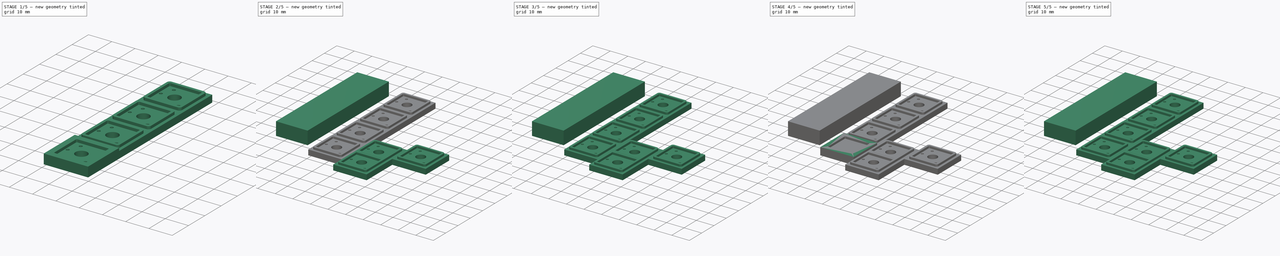
[diagram: build sequence overview — one tinted view per stage of 5, left to right]
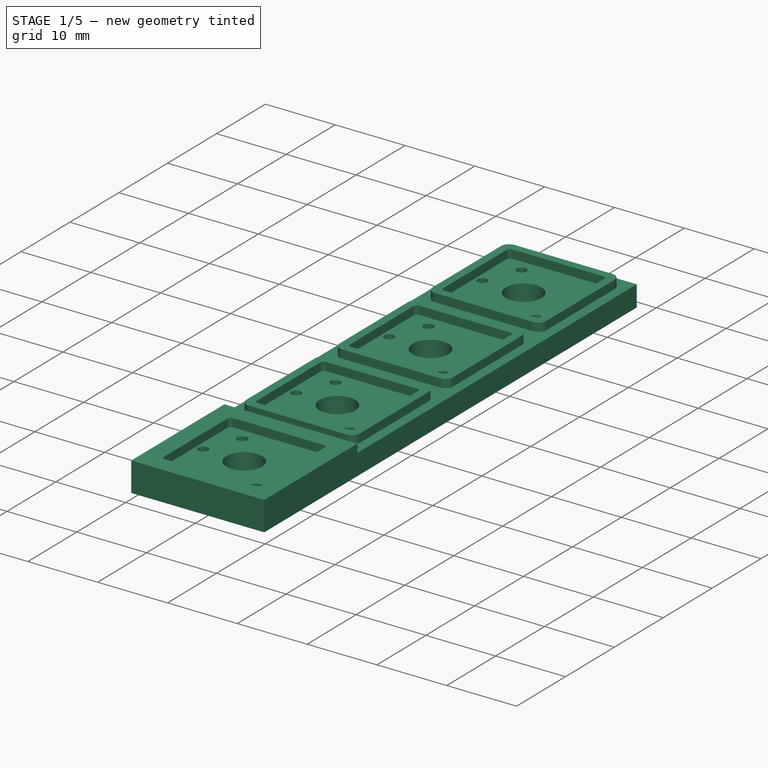
[diagram: stage 1 of 5 — iso view after this stage's code; geometry added in this stage tinted green]
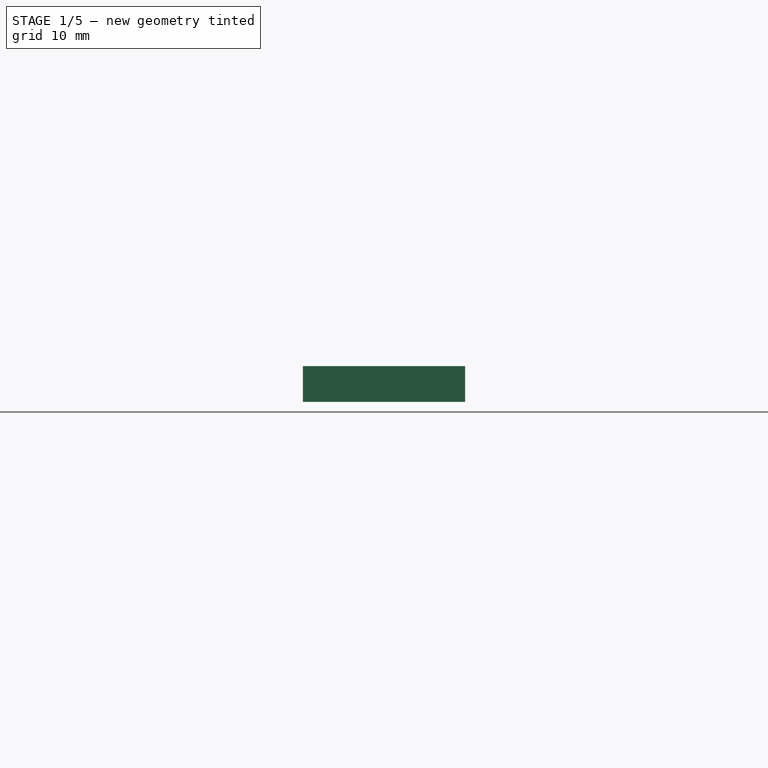
[diagram: stage 1 of 5 — front view after this stage's code; geometry added in this stage tinted green]
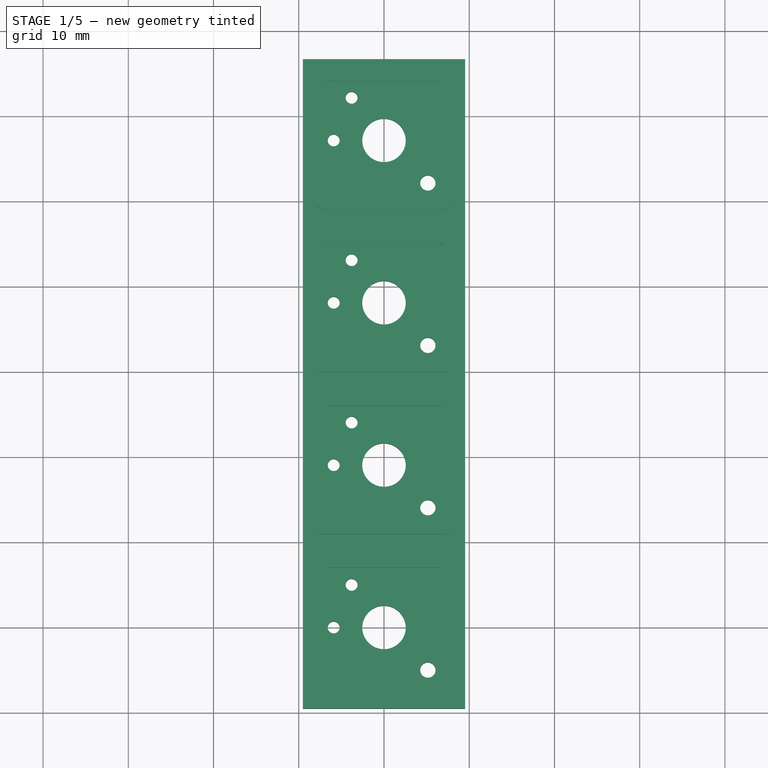
[diagram: stage 1 of 5 — top view after this stage's code; geometry added in this stage tinted green]
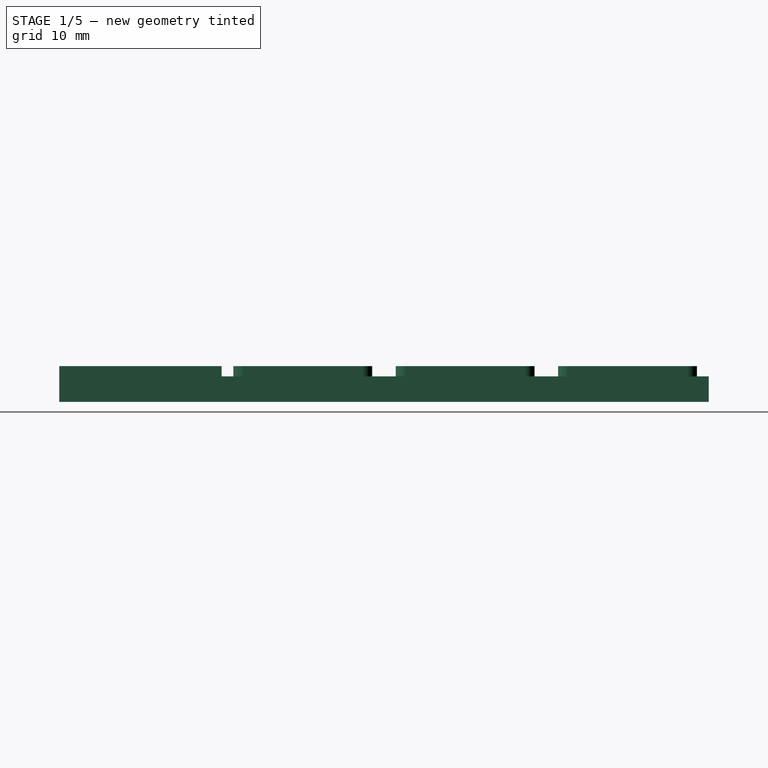
[diagram: stage 1 of 5 — right view after this stage's code; geometry added in this stage tinted green]
FCSTD DOCUMENT  (FreeCAD 0.19R24415 (Git))
Label: switch_slot_right2
License: All rights reserved
LicenseURL: http://en.wikipedia.org/wiki/All_rights_reserved
objects: Sketcher::SketchObject×37, PartDesign::Pocket×24, PartDesign::Body×10, PartDesign::Pad×9, PartDesign::LinearPattern×8
note: 121 computed .brp shape members not serialized (recipe doc carries the construction recipe); baked Part::Feature solids carry a one-line shape summary decoded from their .brp

FEATURE [PartDesign::Body] Body007
  Group = -> [Sketch026,Pad006]
  Origin = -> Origin007
  Placement = pos=(0,0,-4.2) rot=(0,0,1;0rad)
  Tip = -> Pad006
FEATURE [Sketcher::SketchObject] Sketch027
  FullyConstrained = true
  MapMode = 5
  Support = -> [XY_Plane008]
  sketch-geometry (3):
    g0: LineSegment StartX=0 StartY=0 StartZ=0 EndX=19.05 EndY=-6.93363 EndZ=0
    g1: LineSegment StartX=19.05 StartY=-6.93363 StartZ=0 EndX=19.05 EndY=0 EndZ=0
    g2: LineSegment StartX=19.05 StartY=0 StartZ=0 EndX=0 EndY=0 EndZ=0
  constraints (10):
    c: Coincident(g0,g-1)
    c: Coincident(g1,g0)
    c: PointOnObject(g1,g-1)
    c: Coincident(g2,g1)
    c: Coincident(g2,g0)
    c: Vertical(g1)
    c: DistanceX(g2,g2) = 19.05
    c: Distance(g0) = 20.2726
    c: Angle(g0,g2) = 0.349066
    c: DistanceY(g1,g1) = 6.93363
FEATURE [Sketcher::SketchObject] Sketch028
  FullyConstrained = true
  MapMode = 5
  sketch-geometry (8):
    g0: LineSegment StartX=-6.475 StartY=6.975 StartZ=0 EndX=6.475 EndY=6.975 EndZ=0
    g1: LineSegment StartX=6.975 StartY=6.475 StartZ=0 EndX=6.975 EndY=-6.475 EndZ=0
    g2: LineSegment StartX=6.475 StartY=-6.975 StartZ=0 EndX=-6.475 EndY=-6.975 EndZ=0
    g3: LineSegment StartX=-6.975 StartY=-6.475 StartZ=0 EndX=-6.975 EndY=6.475 EndZ=0
    g4: ArcOfCircle CenterX=-6.475 CenterY=6.475 CenterZ=0 NormalX=0 NormalY=0 NormalZ=1 AngleXU=0 Radius=0.5 StartAngle=1.5708 EndAngle=3.14159
    g5: ArcOfCircle CenterX=6.475 CenterY=6.475 CenterZ=0 NormalX=0 NormalY=0 NormalZ=1 AngleXU=0 Radius=0.5 StartAngle=1.121e-13 EndAngle=1.5708
    g6: ArcOfCircle CenterX=6.475 CenterY=-6.475 CenterZ=0 NormalX=0 NormalY=0 NormalZ=1 AngleXU=0 Radius=0.5 StartAngle=4.71239 EndAngle=6.28319
    g7: ArcOfCircle CenterX=-6.475 CenterY=-6.475 CenterZ=0 NormalX=0 NormalY=0 NormalZ=1 AngleXU=0 Radius=0.5 StartAngle=3.14159 EndAngle=4.71239
  constraints (18):
    c: Horizontal(g0)
    c: Horizontal(g2)
    c: Vertical(g1)
    c: Vertical(g3)
    c: Tangent(g3,g4) = 1.5708
    c: Tangent(g0,g4) = 1.5708
    c: Tangent(g0,g5) = 1.5708
    c: Tangent(g1,g5) = 1.5708
    c: Tangent(g1,g6) = 1.5708
    c: Tangent(g2,g6) = 1.5708
    c: Tangent(g3,g7) = 1.5708
    c: Tangent(g2,g7) = 1.5708
    c: Radius(g4) = 0.5
    c: DistanceX(g3,g1) = 13.95
    c: Equal(g4,g7)
    c: Equal(g2,g1)
    c: Symmetric(g5,g7,g-1)
    c: Symmetric(g6,g4,g-1)
FEATURE [Sketcher::SketchObject] Sketch029
  FullyConstrained = true
  MapMode = 5
  Support = -> [XY_Plane008]
  sketch-geometry (12):
    g0: LineSegment StartX=-6.975 StartY=8.145 StartZ=0 EndX=6.975 EndY=8.145 EndZ=0
    g1: LineSegment StartX=8.145 StartY=6.975 StartZ=0 EndX=8.145 EndY=-6.975 EndZ=0
    g2: LineSegment StartX=6.975 StartY=-8.145 StartZ=0 EndX=-6.975 EndY=-8.145 EndZ=0
    g3: LineSegment StartX=-8.145 StartY=-6.975 StartZ=0 EndX=-8.145 EndY=6.975 EndZ=0
    g4: ArcOfCircle CenterX=6.975 CenterY=6.975 CenterZ=0 NormalX=0 NormalY=0 NormalZ=1 AngleXU=0 Radius=1.17 StartAngle=0 EndAngle=1.5708
    g5: ArcOfCircle CenterX=-6.975 CenterY=6.975 CenterZ=0 NormalX=0 NormalY=0 NormalZ=1 AngleXU=0 Radius=1.17 StartAngle=1.5708 EndAngle=3.14159
    g6: ArcOfCircle CenterX=-6.975 CenterY=-6.975 CenterZ=0 NormalX=0 NormalY=0 NormalZ=1 AngleXU=0 Radius=1.17 StartAngle=3.14159 EndAngle=4.71239
    g7: ArcOfCircle CenterX=6.975 CenterY=-6.975 CenterZ=0 NormalX=0 NormalY=0 NormalZ=1 AngleXU=0 Radius=1.17 StartAngle=4.71239 EndAngle=6.28319
    g8: LineSegment StartX=-9.525 StartY=9.525 StartZ=0 EndX=9.525 EndY=9.525 EndZ=0
    g9: LineSegment StartX=9.525 StartY=9.525 StartZ=0 EndX=9.525 EndY=-9.525 EndZ=0
    g10: LineSegment StartX=9.525 StartY=-9.525 StartZ=0 EndX=-9.525 EndY=-9.525 EndZ=0
    g11: LineSegment StartX=-9.525 StartY=-9.525 StartZ=0 EndX=-9.525 EndY=9.525 EndZ=0
  constraints (29):
    c: Horizontal(g0)
    c: Horizontal(g2)
    c: Vertical(g1)
    c: Vertical(g3)
    c: Tangent(g0,g4) = 1.5708
    c: Tangent(g1,g4) = 1.5708
    c: Tangent(g0,g5) = 1.5708
    c: Tangent(g3,g5) = 1.5708
    c: Tangent(g3,g6) = 1.5708
    c: Tangent(g2,g6) = 1.5708
    c: Tangent(g2,g7) = 1.5708
    c: Tangent(g1,g7) = 1.5708
    c: Radius(g5) = 1.17
    c: DistanceX(g3,g1) = 16.29
    c: Equal(g2,g1)
    c: Symmetric(g4,g6,g-1)
    c: Symmetric(g7,g5,g-1)
    c: Equal(g5,g4)
    c: Coincident(g8,g9)
    c: Coincident(g9,g10)
    c: Coincident(g10,g11)
    c: Coincident(g11,g8)
    c: Horizontal(g8)
    c: Horizontal(g10)
    c: Vertical(g9)
    c: Vertical(g11)
    c: Symmetric(g8,g10,g-1)
    c: Equal(g9,g10)
    c: DistanceX(g10,g10) = 19.05
FEATURE [Sketcher::SketchObject] Sketch030
  FullyConstrained = true
  MapMode = 5
  Support = -> [XY_Plane008]
  sketch-geometry (4):
    g0: LineSegment StartX=-9.525 StartY=9.525 StartZ=0 EndX=9.525 EndY=9.525 EndZ=0
    g1: LineSegment StartX=9.525 StartY=9.525 StartZ=0 EndX=9.525 EndY=-9.525 EndZ=0
    g2: LineSegment StartX=9.525 StartY=-9.525 StartZ=0 EndX=-9.525 EndY=-9.525 EndZ=0
    g3: LineSegment StartX=-9.525 StartY=-9.525 StartZ=0 EndX=-9.525 EndY=9.525 EndZ=0
  constraints (11):
    c: Coincident(g0,g1)
    c: Coincident(g1,g2)
    c: Coincident(g2,g3)
    c: Coincident(g3,g0)
    c: Horizontal(g0)
    c: Horizontal(g2)
    c: Vertical(g1)
    c: Vertical(g3)
    c: Symmetric(g0,g2,g-1)
    c: Equal(g1,g0)
    c: DistanceX(g2,g2) = 19.05
FEATURE [PartDesign::Pad] Pad007
  Direction = (0,0,-1)
  Length = 4.2
  Length2 = 100
  Profile = -> Sketch030
  Type = 0
  UseCustomVector = true
FEATURE [PartDesign::Pocket] Pocket019
  BaseFeature = -> Pad007
  Length = 1.2
  Length2 = 100
  Profile = -> Sketch028
  Type = 0
FEATURE [Sketcher::SketchObject] Sketch031
  FullyConstrained = true
  MapMode = 5
  Support = -> [XY_Plane008]
  sketch-geometry (7):
    g0: Circle CenterX=0 CenterY=0 CenterZ=0 NormalX=0 NormalY=0 NormalZ=1 AngleXU=0 Radius=2.55
    g1: GeomPoint X=-3.8 Y=5 Z=0
    g2: GeomPoint X=-5.9 Y=0 Z=0
    g3: GeomPoint X=5.15 Y=-5 Z=0
    g4: Circle CenterX=5.15 CenterY=-5 CenterZ=0 NormalX=0 NormalY=0 NormalZ=1 AngleXU=0 Radius=0.9
    g5: Circle CenterX=-3.8 CenterY=5 CenterZ=0 NormalX=0 NormalY=0 NormalZ=1 AngleXU=0 Radius=0.7
    g6: Circle CenterX=-5.9 CenterY=0 CenterZ=0 NormalX=0 NormalY=0 NormalZ=1 AngleXU=0 Radius=0.7
  constraints (14):
    c: Coincident(g0,g-1)
    c: DistanceY(g3,g0) = 5
    c: DistanceY(g2,g1) = 5
    c: Coincident(g4,g3)
    c: Coincident(g5,g1)
    c: Coincident(g6,g2)
    c: Radius(g5) = 0.7
    c: Radius(g6) = 0.7
    c: Radius(g0) = 2.55
    c: Radius(g4) = 0.9
    c: PointOnObject(g6,g-1)
    c: DistanceX(g6,g5) = 2.1
    c: DistanceX(g6,g0) = 5.9
    c: DistanceX(g0,g4) = 5.15
FEATURE [PartDesign::Pocket] Pocket018
  BaseFeature = -> Pocket019
  Length = 5.2
  Length2 = 100
  Profile = -> Sketch031
  Type = 1
FEATURE [PartDesign::Body] Body008
  Group = -> [Sketch031,Sketch030,Pad007,Sketch028,Pocket019,Pocket018,Sketch029,Pocket020,LinearPattern006,Sketch027]
  Origin = -> Origin008
  Placement = pos=(38.1,-12.11,0) rot=(0,0,1;0rad)
  Tip = -> LinearPattern006
FEATURE [Sketcher::SketchObject] Sketch032
  FullyConstrained = true
  MapMode = 5
  Support = -> [XY_Plane009]
  sketch-geometry (12):
    g0: LineSegment StartX=-6.975 StartY=8.145 StartZ=0 EndX=6.975 EndY=8.145 EndZ=0
    g1: LineSegment StartX=8.145 StartY=6.975 StartZ=0 EndX=8.145 EndY=-6.975 EndZ=0
    g2: LineSegment StartX=6.975 StartY=-8.145 StartZ=0 EndX=-6.975 EndY=-8.145 EndZ=0
    g3: LineSegment StartX=-8.145 StartY=-6.975 StartZ=0 EndX=-8.145 EndY=6.975 EndZ=0
    g4: ArcOfCircle CenterX=6.975 CenterY=6.975 CenterZ=0 NormalX=0 NormalY=0 NormalZ=1 AngleXU=0 Radius=1.17 StartAngle=0 EndAngle=1.5708
    g5: ArcOfCircle CenterX=-6.975 CenterY=6.975 CenterZ=0 NormalX=0 NormalY=0 NormalZ=1 AngleXU=0 Radius=1.17 StartAngle=1.5708 EndAngle=3.14159
    g6: ArcOfCircle CenterX=-6.975 CenterY=-6.975 CenterZ=0 NormalX=0 NormalY=0 NormalZ=1 AngleXU=0 Radius=1.17 StartAngle=3.14159 EndAngle=4.71239
    g7: ArcOfCircle CenterX=6.975 CenterY=-6.975 CenterZ=0 NormalX=0 NormalY=0 NormalZ=1 AngleXU=0 Radius=1.17 StartAngle=4.71239 EndAngle=6.28319
    g8: LineSegment StartX=-9.525 StartY=9.525 StartZ=0 EndX=9.525 EndY=9.525 EndZ=0
    g9: LineSegment StartX=9.525 StartY=9.525 StartZ=0 EndX=9.525 EndY=-9.525 EndZ=0
    g10: LineSegment StartX=9.525 StartY=-9.525 StartZ=0 EndX=-9.525 EndY=-9.525 EndZ=0
    g11: LineSegment StartX=-9.525 StartY=-9.525 StartZ=0 EndX=-9.525 EndY=9.525 EndZ=0
  constraints (29):
    c: Horizontal(g0)
    c: Horizontal(g2)
    c: Vertical(g1)
    c: Vertical(g3)
    c: Tangent(g0,g4) = 1.5708
    c: Tangent(g1,g4) = 1.5708
    c: Tangent(g0,g5) = 1.5708
    c: Tangent(g3,g5) = 1.5708
    c: Tangent(g3,g6) = 1.5708
    c: Tangent(g2,g6) = 1.5708
    c: Tangent(g2,g7) = 1.5708
    c: Tangent(g1,g7) = 1.5708
    c: Radius(g5) = 1.17
    c: DistanceX(g3,g1) = 16.29
    c: Equal(g2,g1)
    c: Symmetric(g4,g6,g-1)
    c: Symmetric(g7,g5,g-1)
    c: Equal(g5,g4)
    c: Coincident(g8,g9)
    c: Coincident(g9,g10)
    c: Coincident(g10,g11)
    c: Coincident(g11,g8)
    c: Horizontal(g8)
    c: Horizontal(g10)
    c: Vertical(g9)
    c: Vertical(g11)
    c: Symmetric(g8,g10,g-1)
    c: Equal(g9,g10)
    c: DistanceX(g10,g10) = 19.05
FEATURE [Sketcher::SketchObject] Sketch033
  FullyConstrained = true
  MapMode = 5
  Support = -> [XY_Plane009]
  sketch-geometry (7):
    g0: Circle CenterX=0 CenterY=0 CenterZ=0 NormalX=0 NormalY=0 NormalZ=1 AngleXU=0 Radius=2.55
    g1: GeomPoint X=-3.8 Y=5 Z=0
    g2: GeomPoint X=-5.9 Y=0 Z=0
    g3: GeomPoint X=5.15 Y=-5 Z=0
    g4: Circle CenterX=5.15 CenterY=-5 CenterZ=0 NormalX=0 NormalY=0 NormalZ=1 AngleXU=0 Radius=0.9
    g5: Circle CenterX=-3.8 CenterY=5 CenterZ=0 NormalX=0 NormalY=0 NormalZ=1 AngleXU=0 Radius=0.7
    g6: Circle CenterX=-5.9 CenterY=0 CenterZ=0 NormalX=0 NormalY=0 NormalZ=1 AngleXU=0 Radius=0.7
  constraints (14):
    c: Coincident(g0,g-1)
    c: DistanceY(g3,g0) = 5
    c: DistanceY(g2,g1) = 5
    c: Coincident(g4,g3)
    c: Coincident(g5,g1)
    c: Coincident(g6,g2)
    c: Radius(g5) = 0.7
    c: Radius(g6) = 0.7
    c: Radius(g0) = 2.55
    c: Radius(g4) = 0.9
    c: PointOnObject(g6,g-1)
    c: DistanceX(g6,g5) = 2.1
    c: DistanceX(g6,g0) = 5.9
    c: DistanceX(g0,g4) = 5.15
FEATURE [Sketcher::SketchObject] Sketch034
  FullyConstrained = true
  MapMode = 5
  Support = -> [XY_Plane009]
  sketch-geometry (4):
    g0: LineSegment StartX=-9.525 StartY=9.525 StartZ=0 EndX=9.525 EndY=9.525 EndZ=0
    g1: LineSegment StartX=9.525 StartY=9.525 StartZ=0 EndX=9.525 EndY=-9.525 EndZ=0
    g2: LineSegment StartX=9.525 StartY=-9.525 StartZ=0 EndX=-9.525 EndY=-9.525 EndZ=0
    g3: LineSegment StartX=-9.525 StartY=-9.525 StartZ=0 EndX=-9.525 EndY=9.525 EndZ=0
  constraints (11):
    c: Coincident(g0,g1)
    c: Coincident(g1,g2)
    c: Coincident(g2,g3)
    c: Coincident(g3,g0)
    c: Horizontal(g0)
    c: Horizontal(g2)
    c: Vertical(g1)
    c: Vertical(g3)
    c: Symmetric(g0,g2,g-1)
    c: Equal(g1,g0)
    c: DistanceX(g2,g2) = 19.05
FEATURE [Sketcher::SketchObject] Sketch035
  FullyConstrained = true
  MapMode = 5
  sketch-geometry (8):
    g0: LineSegment StartX=-6.475 StartY=6.975 StartZ=0 EndX=6.475 EndY=6.975 EndZ=0
    g1: LineSegment StartX=6.975 StartY=6.475 StartZ=0 EndX=6.975 EndY=-6.475 EndZ=0
    g2: LineSegment StartX=6.475 StartY=-6.975 StartZ=0 EndX=-6.475 EndY=-6.975 EndZ=0
    g3: LineSegment StartX=-6.975 StartY=-6.475 StartZ=0 EndX=-6.975 EndY=6.475 EndZ=0
    g4: ArcOfCircle CenterX=-6.475 CenterY=6.475 CenterZ=0 NormalX=0 NormalY=0 NormalZ=1 AngleXU=0 Radius=0.5 StartAngle=1.5708 EndAngle=3.14159
    g5: ArcOfCircle CenterX=6.475 CenterY=6.475 CenterZ=0 NormalX=0 NormalY=0 NormalZ=1 AngleXU=0 Radius=0.5 StartAngle=1.121e-13 EndAngle=1.5708
    g6: ArcOfCircle CenterX=6.475 CenterY=-6.475 CenterZ=0 NormalX=0 NormalY=0 NormalZ=1 AngleXU=0 Radius=0.5 StartAngle=4.71239 EndAngle=6.28319
    g7: ArcOfCircle CenterX=-6.475 CenterY=-6.475 CenterZ=0 NormalX=0 NormalY=0 NormalZ=1 AngleXU=0 Radius=0.5 StartAngle=3.14159 EndAngle=4.71239
  constraints (18):
    c: Horizontal(g0)
    c: Horizontal(g2)
    c: Vertical(g1)
    c: Vertical(g3)
    c: Tangent(g3,g4) = 1.5708
    c: Tangent(g0,g4) = 1.5708
    c: Tangent(g0,g5) = 1.5708
    c: Tangent(g1,g5) = 1.5708
    c: Tangent(g1,g6) = 1.5708
    c: Tangent(g2,g6) = 1.5708
    c: Tangent(g3,g7) = 1.5708
    c: Tangent(g2,g7) = 1.5708
    c: Radius(g4) = 0.5
    c: DistanceX(g3,g1) = 13.95
    c: Equal(g4,g7)
    c: Equal(g2,g1)
    c: Symmetric(g5,g7,g-1)
    c: Symmetric(g6,g4,g-1)
FEATURE [PartDesign::Pad] Pad008
  Direction = (0,0,-1)
  Length = 4.2
  Length2 = 100
  Profile = -> Sketch034
  Type = 0
  UseCustomVector = true
FEATURE [PartDesign::Pocket] Pocket022
  BaseFeature = -> Pad008
  Length = 1.2
  Length2 = 100
  Profile = -> Sketch035
  Type = 0
FEATURE [PartDesign::Pocket] Pocket021
  BaseFeature = -> Pocket022
  Length = 5.2
  Length2 = 100
  Profile = -> Sketch033
  Type = 1
FEATURE [PartDesign::Pocket] Pocket023
  BaseFeature = -> Pocket021
  Length = 1.2
  Length2 = 100
  Profile = -> Sketch032
  Type = 0
FEATURE [PartDesign::LinearPattern] LinearPattern007
  BaseFeature = -> Pocket023
  Direction = -> Sketch034 [V_Axis]
  Length = 57.15
  Occurrences = 4
  Originals = -> [Pad008,Pocket022,Pocket021,Pocket023]
FEATURE [PartDesign::Body] Body009
  Group = -> [Sketch033,Sketch034,Pad008,Sketch035,Pocket022,Pocket021,Sketch032,Pocket023,LinearPattern007]
  Origin = -> Origin009
  Placement = pos=(95.25,-19.05,0) rot=(0,0,1;0rad)
  Tip = -> LinearPattern007
FEATURE [Sketcher::SketchObject] Sketch036
  FullyConstrained = false
  MapMode = 5
  Support = -> [XY_Plane010]
  sketch-geometry (4):
    g0: LineSegment StartX=-17.4714 StartY=41.8902 StartZ=0 EndX=-10.2214 EndY=41.8902 EndZ=0
    g1: LineSegment StartX=-10.2214 StartY=41.8902 StartZ=0 EndX=-10.2214 EndY=-8.60981 EndZ=0
    g2: LineSegment StartX=-10.2214 StartY=-8.60981 StartZ=0 EndX=-17.4714 EndY=-8.60981 EndZ=0
    g3: LineSegment StartX=-17.4714 StartY=-8.60981 StartZ=0 EndX=-17.4714 EndY=41.8902 EndZ=0
  constraints (10):
    c: Coincident(g0,g1)
    c: Coincident(g1,g2)
    c: Coincident(g2,g3)
    c: Coincident(g3,g0)
    c: Horizontal(g0)
    c: Horizontal(g2)
    c: Vertical(g1)
    c: Vertical(g3)
    c: DistanceX(g0,g0) = 7.25
    c: DistanceY(g3,g3) = 50.5
FEATURE [Sketcher::SketchObject] Sketch037
  FullyConstrained = false
  MapMode = 5
  Support = -> [XY_Plane010]
  sketch-geometry (1):
    g0: LineSegment StartX=-19.3253 StartY=-26.333 StartZ=0 EndX=-19.3253 EndY=65.455 EndZ=0
  constraints (1):
    c: Vertical(g0)
FEATURE [PartDesign::Body] Body010
  Group = -> [Sketch036,Sketch037]
  Origin = -> Origin010
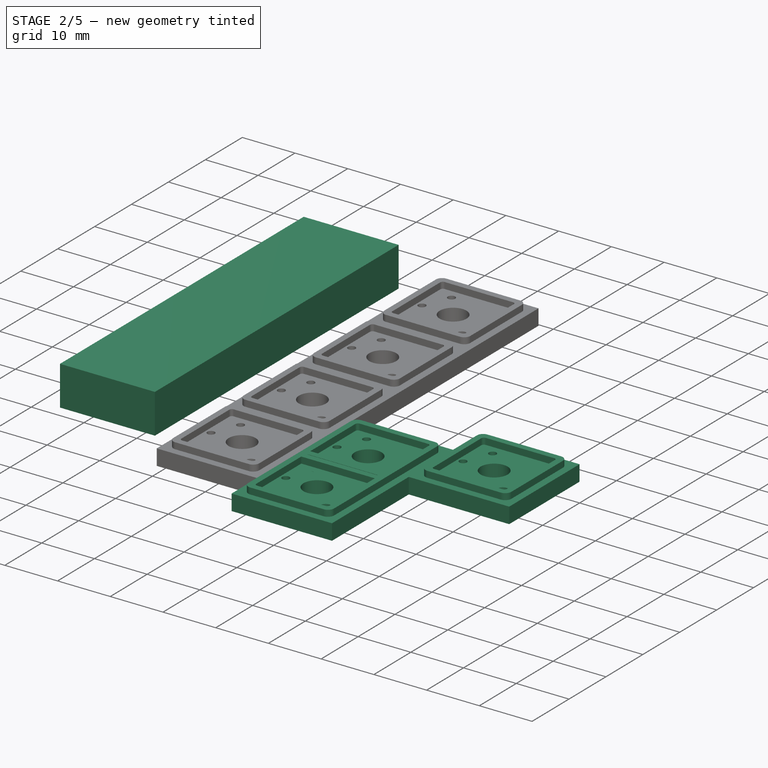
[diagram: stage 2 of 5 — iso view after this stage's code; geometry added in this stage tinted green]
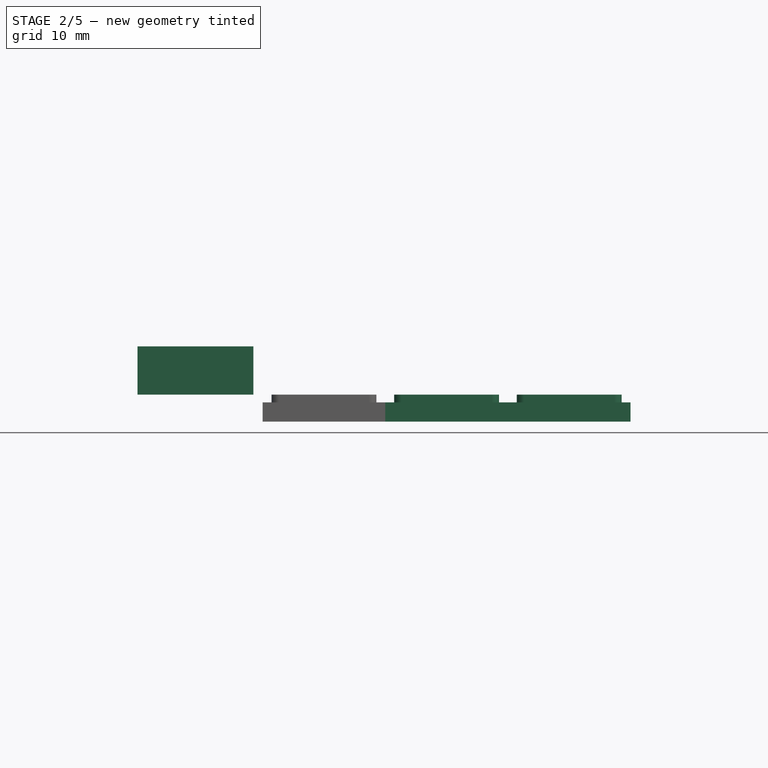
[diagram: stage 2 of 5 — front view after this stage's code; geometry added in this stage tinted green]
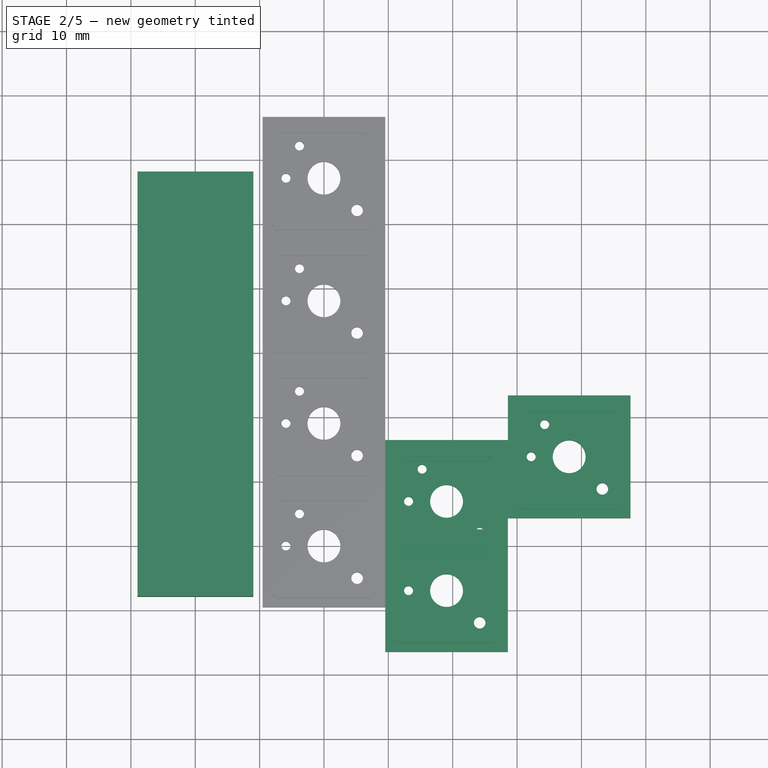
[diagram: stage 2 of 5 — top view after this stage's code; geometry added in this stage tinted green]
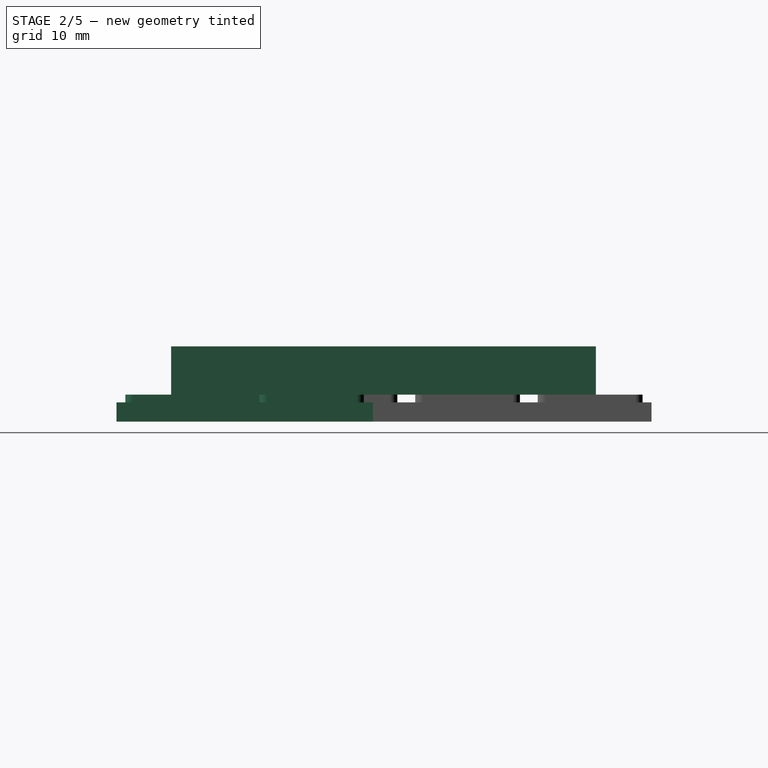
[diagram: stage 2 of 5 — right view after this stage's code; geometry added in this stage tinted green]
FEATURE [PartDesign::Body] Body004
  Group = -> [Sketch017,Sketch018,Pad004,Sketch019,Pocket013,Pocket012,Sketch016,Pocket014,LinearPattern004]
  Origin = -> Origin004
  Placement = pos=(76.2,-19.05,0) rot=(0,0,1;0rad)
  Tip = -> LinearPattern004
FEATURE [Sketcher::SketchObject] Sketch020
  FullyConstrained = true
  MapMode = 5
  sketch-geometry (8):
    g0: LineSegment StartX=-6.475 StartY=6.975 StartZ=0 EndX=6.475 EndY=6.975 EndZ=0
    g1: LineSegment StartX=6.975 StartY=6.475 StartZ=0 EndX=6.975 EndY=-6.475 EndZ=0
    g2: LineSegment StartX=6.475 StartY=-6.975 StartZ=0 EndX=-6.475 EndY=-6.975 EndZ=0
    g3: LineSegment StartX=-6.975 StartY=-6.475 StartZ=0 EndX=-6.975 EndY=6.475 EndZ=0
    g4: ArcOfCircle CenterX=-6.475 CenterY=6.475 CenterZ=0 NormalX=0 NormalY=0 NormalZ=1 AngleXU=0 Radius=0.5 StartAngle=1.5708 EndAngle=3.14159
    g5: ArcOfCircle CenterX=6.475 CenterY=6.475 CenterZ=0 NormalX=0 NormalY=0 NormalZ=1 AngleXU=0 Radius=0.5 StartAngle=1.121e-13 EndAngle=1.5708
    g6: ArcOfCircle CenterX=6.475 CenterY=-6.475 CenterZ=0 NormalX=0 NormalY=0 NormalZ=1 AngleXU=0 Radius=0.5 StartAngle=4.71239 EndAngle=6.28319
    g7: ArcOfCircle CenterX=-6.475 CenterY=-6.475 CenterZ=0 NormalX=0 NormalY=0 NormalZ=1 AngleXU=0 Radius=0.5 StartAngle=3.14159 EndAngle=4.71239
  constraints (18):
    c: Horizontal(g0)
    c: Horizontal(g2)
    c: Vertical(g1)
    c: Vertical(g3)
    c: Tangent(g3,g4) = 1.5708
    c: Tangent(g0,g4) = 1.5708
    c: Tangent(g0,g5) = 1.5708
    c: Tangent(g1,g5) = 1.5708
    c: Tangent(g1,g6) = 1.5708
    c: Tangent(g2,g6) = 1.5708
    c: Tangent(g3,g7) = 1.5708
    c: Tangent(g2,g7) = 1.5708
    c: Radius(g4) = 0.5
    c: DistanceX(g3,g1) = 13.95
    c: Equal(g4,g7)
    c: Equal(g2,g1)
    c: Symmetric(g5,g7,g-1)
    c: Symmetric(g6,g4,g-1)
FEATURE [Sketcher::SketchObject] Sketch021
  FullyConstrained = true
  MapMode = 5
  Support = -> [XY_Plane005]
  sketch-geometry (12):
    g0: LineSegment StartX=-6.975 StartY=8.145 StartZ=0 EndX=6.975 EndY=8.145 EndZ=0
    g1: LineSegment StartX=8.145 StartY=6.975 StartZ=0 EndX=8.145 EndY=-6.975 EndZ=0
    g2: LineSegment StartX=6.975 StartY=-8.145 StartZ=0 EndX=-6.975 EndY=-8.145 EndZ=0
    g3: LineSegment StartX=-8.145 StartY=-6.975 StartZ=0 EndX=-8.145 EndY=6.975 EndZ=0
    g4: ArcOfCircle CenterX=6.975 CenterY=6.975 CenterZ=0 NormalX=0 NormalY=0 NormalZ=1 AngleXU=0 Radius=1.17 StartAngle=0 EndAngle=1.5708
    g5: ArcOfCircle CenterX=-6.975 CenterY=6.975 CenterZ=0 NormalX=0 NormalY=0 NormalZ=1 AngleXU=0 Radius=1.17 StartAngle=1.5708 EndAngle=3.14159
    g6: ArcOfCircle CenterX=-6.975 CenterY=-6.975 CenterZ=0 NormalX=0 NormalY=0 NormalZ=1 AngleXU=0 Radius=1.17 StartAngle=3.14159 EndAngle=4.71239
    g7: ArcOfCircle CenterX=6.975 CenterY=-6.975 CenterZ=0 NormalX=0 NormalY=0 NormalZ=1 AngleXU=0 Radius=1.17 StartAngle=4.71239 EndAngle=6.28319
    g8: LineSegment StartX=-9.525 StartY=9.525 StartZ=0 EndX=9.525 EndY=9.525 EndZ=0
    g9: LineSegment StartX=9.525 StartY=9.525 StartZ=0 EndX=9.525 EndY=-9.525 EndZ=0
    g10: LineSegment StartX=9.525 StartY=-9.525 StartZ=0 EndX=-9.525 EndY=-9.525 EndZ=0
    g11: LineSegment StartX=-9.525 StartY=-9.525 StartZ=0 EndX=-9.525 EndY=9.525 EndZ=0
  constraints (29):
    c: Horizontal(g0)
    c: Horizontal(g2)
    c: Vertical(g1)
    c: Vertical(g3)
    c: Tangent(g0,g4) = 1.5708
    c: Tangent(g1,g4) = 1.5708
    c: Tangent(g0,g5) = 1.5708
    c: Tangent(g3,g5) = 1.5708
    c: Tangent(g3,g6) = 1.5708
    c: Tangent(g2,g6) = 1.5708
    c: Tangent(g2,g7) = 1.5708
    c: Tangent(g1,g7) = 1.5708
    c: Radius(g5) = 1.17
    c: DistanceX(g3,g1) = 16.29
    c: Equal(g2,g1)
    c: Symmetric(g4,g6,g-1)
    c: Symmetric(g7,g5,g-1)
    c: Equal(g5,g4)
    c: Coincident(g8,g9)
    c: Coincident(g9,g10)
    c: Coincident(g10,g11)
    c: Coincident(g11,g8)
    c: Horizontal(g8)
    c: Horizontal(g10)
    c: Vertical(g9)
    c: Vertical(g11)
    c: Symmetric(g8,g10,g-1)
    c: Equal(g9,g10)
    c: DistanceX(g10,g10) = 19.05
FEATURE [Sketcher::SketchObject] Sketch022
  FullyConstrained = true
  MapMode = 5
  Support = -> [XY_Plane005]
  sketch-geometry (4):
    g0: LineSegment StartX=-9.525 StartY=9.525 StartZ=0 EndX=9.525 EndY=9.525 EndZ=0
    g1: LineSegment StartX=9.525 StartY=9.525 StartZ=0 EndX=9.525 EndY=-9.525 EndZ=0
    g2: LineSegment StartX=9.525 StartY=-9.525 StartZ=0 EndX=-9.525 EndY=-9.525 EndZ=0
    g3: LineSegment StartX=-9.525 StartY=-9.525 StartZ=0 EndX=-9.525 EndY=9.525 EndZ=0
  constraints (11):
    c: Coincident(g0,g1)
    c: Coincident(g1,g2)
    c: Coincident(g2,g3)
    c: Coincident(g3,g0)
    c: Horizontal(g0)
    c: Horizontal(g2)
    c: Vertical(g1)
    c: Vertical(g3)
    c: Symmetric(g0,g2,g-1)
    c: Equal(g1,g0)
    c: DistanceX(g2,g2) = 19.05
FEATURE [PartDesign::Pad] Pad005
  Direction = (0,0,-1)
  Length = 4.2
  Length2 = 100
  Profile = -> Sketch022
  Type = 0
  UseCustomVector = true
FEATURE [PartDesign::Pocket] Pocket015
  BaseFeature = -> Pad005
  Length = 1.2
  Length2 = 100
  Profile = -> Sketch020
  Type = 0
FEATURE [Sketcher::SketchObject] Sketch023
  FullyConstrained = true
  MapMode = 5
  Support = -> [XY_Plane005]
  sketch-geometry (7):
    g0: Circle CenterX=0 CenterY=0 CenterZ=0 NormalX=0 NormalY=0 NormalZ=1 AngleXU=0 Radius=2.55
    g1: GeomPoint X=-3.8 Y=5 Z=0
    g2: GeomPoint X=-5.9 Y=0 Z=0
    g3: GeomPoint X=5.15 Y=-5 Z=0
    g4: Circle CenterX=5.15 CenterY=-5 CenterZ=0 NormalX=0 NormalY=0 NormalZ=1 AngleXU=0 Radius=0.9
    g5: Circle CenterX=-3.8 CenterY=5 CenterZ=0 NormalX=0 NormalY=0 NormalZ=1 AngleXU=0 Radius=0.7
    g6: Circle CenterX=-5.9 CenterY=0 CenterZ=0 NormalX=0 NormalY=0 NormalZ=1 AngleXU=0 Radius=0.7
  constraints (14):
    c: Coincident(g0,g-1)
    c: DistanceY(g3,g0) = 5
    c: DistanceY(g2,g1) = 5
    c: Coincident(g4,g3)
    c: Coincident(g5,g1)
    c: Coincident(g6,g2)
    c: Radius(g5) = 0.7
    c: Radius(g6) = 0.7
    c: Radius(g0) = 2.55
    c: Radius(g4) = 0.9
    c: PointOnObject(g6,g-1)
    c: DistanceX(g6,g5) = 2.1
    c: DistanceX(g6,g0) = 5.9
    c: DistanceX(g0,g4) = 5.15
FEATURE [PartDesign::Pocket] Pocket016
  BaseFeature = -> Pocket015
  Length = 5.2
  Length2 = 100
  Profile = -> Sketch023
  Type = 1
FEATURE [PartDesign::Pocket] Pocket017
  BaseFeature = -> Pocket016
  Length = 1.2
  Length2 = 100
  Profile = -> Sketch021
  Type = 0
FEATURE [Sketcher::SketchObject] Sketch025
  FullyConstrained = true
  MapMode = 5
  Support = -> [XY_Plane005]
  sketch-geometry (3):
    g0: LineSegment StartX=0 StartY=0 StartZ=0 EndX=38.1 EndY=13.8673 EndZ=0
    g1: LineSegment StartX=38.1 StartY=13.8673 StartZ=0 EndX=38.1 EndY=0 EndZ=0
    g2: LineSegment StartX=38.1 StartY=0 StartZ=0 EndX=0 EndY=0 EndZ=0
  constraints (10):
    c: Coincident(g0,g-1)
    c: Coincident(g1,g0)
    c: PointOnObject(g1,g-1)
    c: Coincident(g2,g1)
    c: Coincident(g2,g0)
    c: Vertical(g1)
    c: Angle(g2,g0) = 0.349066
    c: DistanceX(g2,g2) = 38.1
    c: Distance(g0) = 40.5452
    c: DistanceY(g1,g1) = 13.8673
FEATURE [PartDesign::LinearPattern] LinearPattern005
  BaseFeature = -> Pocket017
  Direction = -> Sketch025 [Edge1]
  Length = 40.54
  Occurrences = 3
  Originals = -> [Pad005,Pocket015,Pocket016,Pocket017]
FEATURE [PartDesign::Body] Body005
  Group = -> [Sketch023,Sketch022,Pad005,Sketch020,Pocket015,Pocket016,Sketch021,Pocket017,LinearPattern005,Sketch025]
  Origin = -> Origin005
  Placement = pos=(-19.05,-25.985,0) rot=(0,0,1;0rad)
  Tip = -> LinearPattern005
FEATURE [Sketcher::SketchObject] Sketch026
  FullyConstrained = false
  MapMode = 5
  Support = -> [XY_Plane007]
  sketch-geometry (4):
    g0: LineSegment StartX=-28.9639 StartY=58.0354 StartZ=0 EndX=-10.9639 EndY=58.0354 EndZ=0
    g1: LineSegment StartX=-10.9639 StartY=58.0354 StartZ=0 EndX=-10.9639 EndY=-7.96459 EndZ=0
    g2: LineSegment StartX=-10.9639 StartY=-7.96459 StartZ=0 EndX=-28.9639 EndY=-7.96459 EndZ=0
    g3: LineSegment StartX=-28.9639 StartY=-7.96459 StartZ=0 EndX=-28.9639 EndY=58.0354 EndZ=0
  constraints (10):
    c: Coincident(g0,g1)
    c: Coincident(g1,g2)
    c: Coincident(g2,g3)
    c: Coincident(g3,g0)
    c: Horizontal(g0)
    c: Horizontal(g2)
    c: Vertical(g1)
    c: Vertical(g3)
    c: DistanceX(g0,g0) = 18
    c: DistanceY(g3,g3) = 66
FEATURE [PartDesign::Pad] Pad006
  Direction = (1,1,1)
  Length = 7.5
  Length2 = 100
  Profile = -> Sketch026
  Type = 0
FEATURE [PartDesign::Pocket] Pocket020
  BaseFeature = -> Pocket018
  Length = 1.2
  Length2 = 100
  Profile = -> Sketch029
  Type = 0
FEATURE [PartDesign::LinearPattern] LinearPattern006
  BaseFeature = -> Pocket020
  Direction = -> Sketch027 [Edge1]
  Length = 20.27
  Occurrences = 2
  Originals = -> [Pad007,Pocket019,Pocket018,Pocket020]
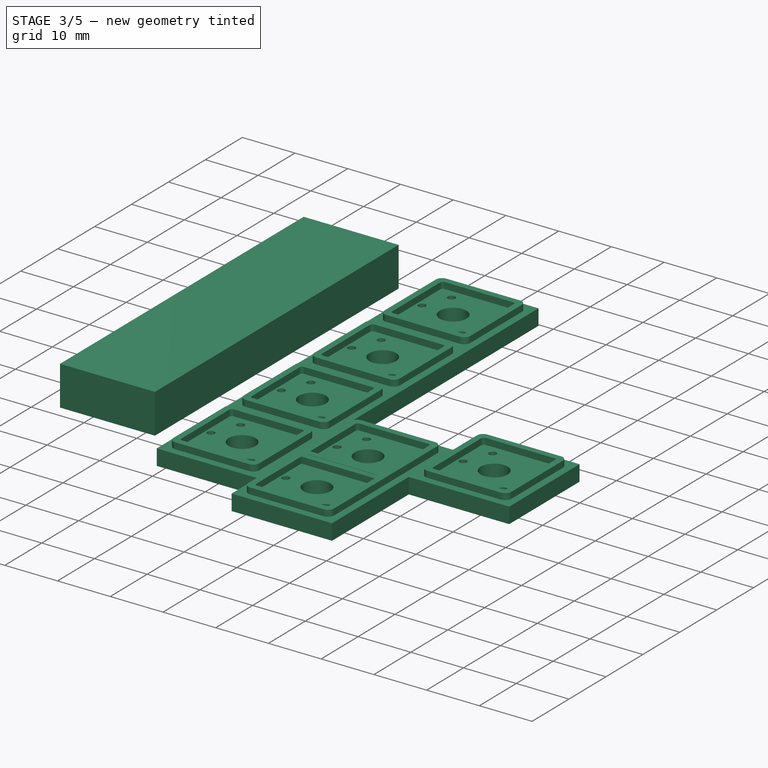
[diagram: stage 3 of 5 — iso view after this stage's code; geometry added in this stage tinted green]
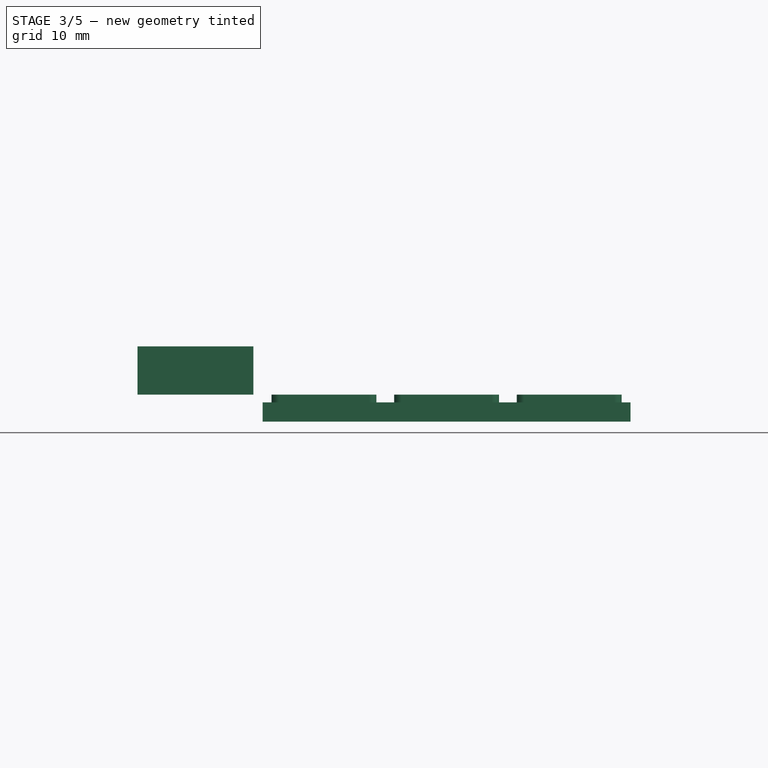
[diagram: stage 3 of 5 — front view after this stage's code; geometry added in this stage tinted green]
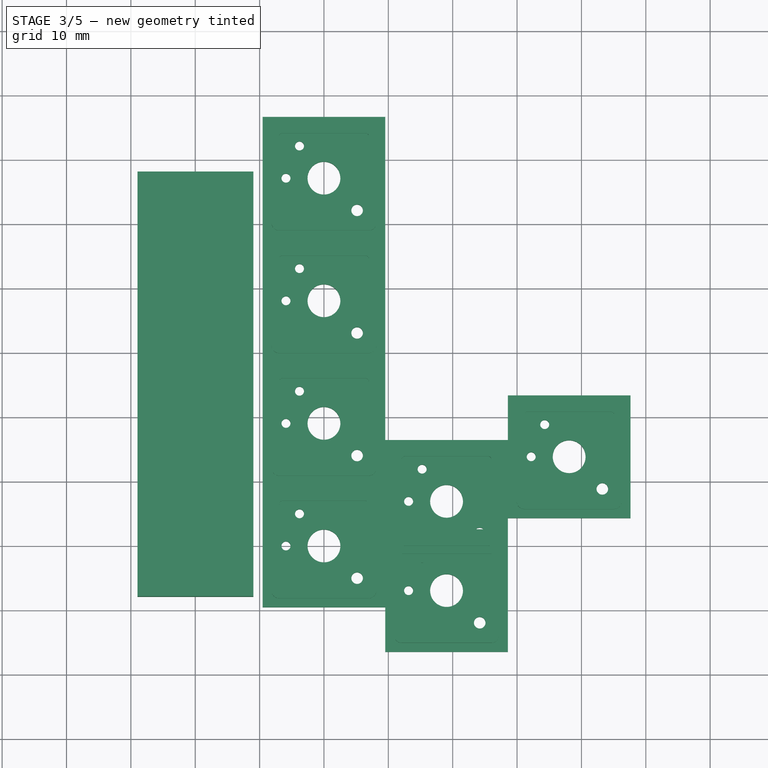
[diagram: stage 3 of 5 — top view after this stage's code; geometry added in this stage tinted green]
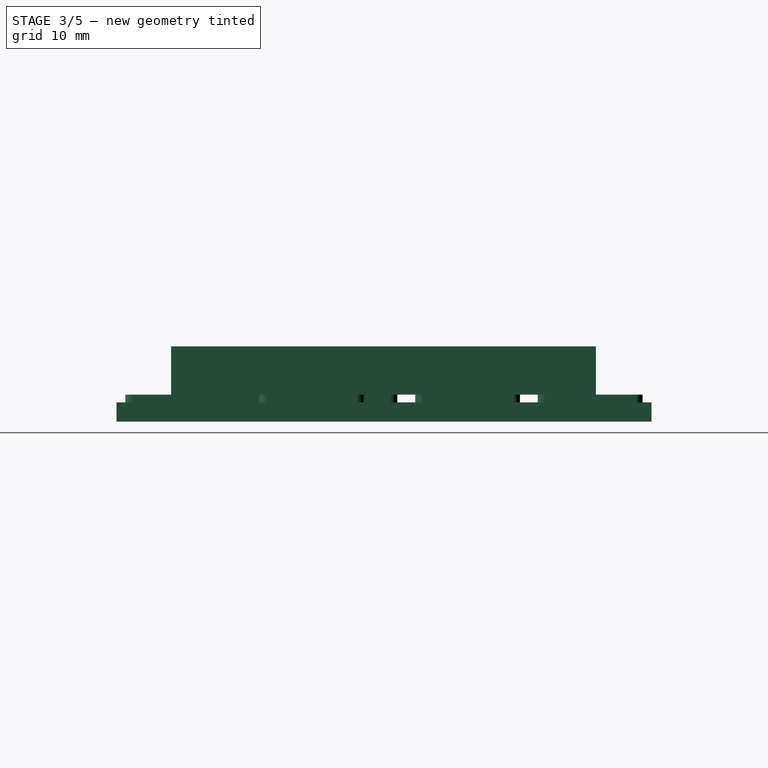
[diagram: stage 3 of 5 — right view after this stage's code; geometry added in this stage tinted green]
FEATURE [PartDesign::Body] Body002
  Group = -> [Sketch010,Sketch011,Pad002,Sketch008,Pocket007,Pocket008,Sketch009,Pocket006,LinearPattern002]
  Origin = -> Origin002
  Placement = pos=(38.1,19.05,0) rot=(0,0,1;0rad)
  Tip = -> LinearPattern002
FEATURE [Sketcher::SketchObject] Sketch012
  FullyConstrained = true
  MapMode = 5
  sketch-geometry (8):
    g0: LineSegment StartX=-6.475 StartY=6.975 StartZ=0 EndX=6.475 EndY=6.975 EndZ=0
    g1: LineSegment StartX=6.975 StartY=6.475 StartZ=0 EndX=6.975 EndY=-6.475 EndZ=0
    g2: LineSegment StartX=6.475 StartY=-6.975 StartZ=0 EndX=-6.475 EndY=-6.975 EndZ=0
    g3: LineSegment StartX=-6.975 StartY=-6.475 StartZ=0 EndX=-6.975 EndY=6.475 EndZ=0
    g4: ArcOfCircle CenterX=-6.475 CenterY=6.475 CenterZ=0 NormalX=0 NormalY=0 NormalZ=1 AngleXU=0 Radius=0.5 StartAngle=1.5708 EndAngle=3.14159
    g5: ArcOfCircle CenterX=6.475 CenterY=6.475 CenterZ=0 NormalX=0 NormalY=0 NormalZ=1 AngleXU=0 Radius=0.5 StartAngle=1.121e-13 EndAngle=1.5708
    g6: ArcOfCircle CenterX=6.475 CenterY=-6.475 CenterZ=0 NormalX=0 NormalY=0 NormalZ=1 AngleXU=0 Radius=0.5 StartAngle=4.71239 EndAngle=6.28319
    g7: ArcOfCircle CenterX=-6.475 CenterY=-6.475 CenterZ=0 NormalX=0 NormalY=0 NormalZ=1 AngleXU=0 Radius=0.5 StartAngle=3.14159 EndAngle=4.71239
  constraints (18):
    c: Horizontal(g0)
    c: Horizontal(g2)
    c: Vertical(g1)
    c: Vertical(g3)
    c: Tangent(g3,g4) = 1.5708
    c: Tangent(g0,g4) = 1.5708
    c: Tangent(g0,g5) = 1.5708
    c: Tangent(g1,g5) = 1.5708
    c: Tangent(g1,g6) = 1.5708
    c: Tangent(g2,g6) = 1.5708
    c: Tangent(g3,g7) = 1.5708
    c: Tangent(g2,g7) = 1.5708
    c: Radius(g4) = 0.5
    c: DistanceX(g3,g1) = 13.95
    c: Equal(g4,g7)
    c: Equal(g2,g1)
    c: Symmetric(g5,g7,g-1)
    c: Symmetric(g6,g4,g-1)
FEATURE [Sketcher::SketchObject] Sketch013
  FullyConstrained = true
  MapMode = 5
  Support = -> [XY_Plane003]
  sketch-geometry (12):
    g0: LineSegment StartX=-6.975 StartY=8.145 StartZ=0 EndX=6.975 EndY=8.145 EndZ=0
    g1: LineSegment StartX=8.145 StartY=6.975 StartZ=0 EndX=8.145 EndY=-6.975 EndZ=0
    g2: LineSegment StartX=6.975 StartY=-8.145 StartZ=0 EndX=-6.975 EndY=-8.145 EndZ=0
    g3: LineSegment StartX=-8.145 StartY=-6.975 StartZ=0 EndX=-8.145 EndY=6.975 EndZ=0
    g4: ArcOfCircle CenterX=6.975 CenterY=6.975 CenterZ=0 NormalX=0 NormalY=0 NormalZ=1 AngleXU=0 Radius=1.17 StartAngle=0 EndAngle=1.5708
    g5: ArcOfCircle CenterX=-6.975 CenterY=6.975 CenterZ=0 NormalX=0 NormalY=0 NormalZ=1 AngleXU=0 Radius=1.17 StartAngle=1.5708 EndAngle=3.14159
    g6: ArcOfCircle CenterX=-6.975 CenterY=-6.975 CenterZ=0 NormalX=0 NormalY=0 NormalZ=1 AngleXU=0 Radius=1.17 StartAngle=3.14159 EndAngle=4.71239
    g7: ArcOfCircle CenterX=6.975 CenterY=-6.975 CenterZ=0 NormalX=0 NormalY=0 NormalZ=1 AngleXU=0 Radius=1.17 StartAngle=4.71239 EndAngle=6.28319
    g8: LineSegment StartX=-9.525 StartY=9.525 StartZ=0 EndX=9.525 EndY=9.525 EndZ=0
    g9: LineSegment StartX=9.525 StartY=9.525 StartZ=0 EndX=9.525 EndY=-9.525 EndZ=0
    g10: LineSegment StartX=9.525 StartY=-9.525 StartZ=0 EndX=-9.525 EndY=-9.525 EndZ=0
    g11: LineSegment StartX=-9.525 StartY=-9.525 StartZ=0 EndX=-9.525 EndY=9.525 EndZ=0
  constraints (29):
    c: Horizontal(g0)
    c: Horizontal(g2)
    c: Vertical(g1)
    c: Vertical(g3)
    c: Tangent(g0,g4) = 1.5708
    c: Tangent(g1,g4) = 1.5708
    c: Tangent(g0,g5) = 1.5708
    c: Tangent(g3,g5) = 1.5708
    c: Tangent(g3,g6) = 1.5708
    c: Tangent(g2,g6) = 1.5708
    c: Tangent(g2,g7) = 1.5708
    c: Tangent(g1,g7) = 1.5708
    c: Radius(g5) = 1.17
    c: DistanceX(g3,g1) = 16.29
    c: Equal(g2,g1)
    c: Symmetric(g4,g6,g-1)
    c: Symmetric(g7,g5,g-1)
    c: Equal(g5,g4)
    c: Coincident(g8,g9)
    c: Coincident(g9,g10)
    c: Coincident(g10,g11)
    c: Coincident(g11,g8)
    c: Horizontal(g8)
    c: Horizontal(g10)
    c: Vertical(g9)
    c: Vertical(g11)
    c: Symmetric(g8,g10,g-1)
    c: Equal(g9,g10)
    c: DistanceX(g10,g10) = 19.05
FEATURE [Sketcher::SketchObject] Sketch014
  FullyConstrained = true
  MapMode = 5
  Support = -> [XY_Plane003]
  sketch-geometry (7):
    g0: Circle CenterX=0 CenterY=0 CenterZ=0 NormalX=0 NormalY=0 NormalZ=1 AngleXU=0 Radius=2.55
    g1: GeomPoint X=-3.8 Y=5 Z=0
    g2: GeomPoint X=-5.9 Y=0 Z=0
    g3: GeomPoint X=5.15 Y=-5 Z=0
    g4: Circle CenterX=5.15 CenterY=-5 CenterZ=0 NormalX=0 NormalY=0 NormalZ=1 AngleXU=0 Radius=0.9
    g5: Circle CenterX=-3.8 CenterY=5 CenterZ=0 NormalX=0 NormalY=0 NormalZ=1 AngleXU=0 Radius=0.7
    g6: Circle CenterX=-5.9 CenterY=0 CenterZ=0 NormalX=0 NormalY=0 NormalZ=1 AngleXU=0 Radius=0.7
  constraints (14):
    c: Coincident(g0,g-1)
    c: DistanceY(g3,g0) = 5
    c: DistanceY(g2,g1) = 5
    c: Coincident(g4,g3)
    c: Coincident(g5,g1)
    c: Coincident(g6,g2)
    c: Radius(g5) = 0.7
    c: Radius(g6) = 0.7
    c: Radius(g0) = 2.55
    c: Radius(g4) = 0.9
    c: PointOnObject(g6,g-1)
    c: DistanceX(g6,g5) = 2.1
    c: DistanceX(g6,g0) = 5.9
    c: DistanceX(g0,g4) = 5.15
FEATURE [Sketcher::SketchObject] Sketch015
  FullyConstrained = true
  MapMode = 5
  Support = -> [XY_Plane003]
  sketch-geometry (4):
    g0: LineSegment StartX=-9.525 StartY=9.525 StartZ=0 EndX=9.525 EndY=9.525 EndZ=0
    g1: LineSegment StartX=9.525 StartY=9.525 StartZ=0 EndX=9.525 EndY=-9.525 EndZ=0
    g2: LineSegment StartX=9.525 StartY=-9.525 StartZ=0 EndX=-9.525 EndY=-9.525 EndZ=0
    g3: LineSegment StartX=-9.525 StartY=-9.525 StartZ=0 EndX=-9.525 EndY=9.525 EndZ=0
  constraints (11):
    c: Coincident(g0,g1)
    c: Coincident(g1,g2)
    c: Coincident(g2,g3)
    c: Coincident(g3,g0)
    c: Horizontal(g0)
    c: Horizontal(g2)
    c: Vertical(g1)
    c: Vertical(g3)
    c: Symmetric(g0,g2,g-1)
    c: Equal(g1,g0)
    c: DistanceX(g2,g2) = 19.05
FEATURE [PartDesign::Pad] Pad003
  Direction = (0,0,-1)
  Length = 4.2
  Length2 = 100
  Profile = -> Sketch015
  Type = 0
  UseCustomVector = true
FEATURE [PartDesign::Pocket] Pocket011
  BaseFeature = -> Pad003
  Length = 1.2
  Length2 = 100
  Profile = -> Sketch012
  Type = 0
FEATURE [PartDesign::Pocket] Pocket010
  BaseFeature = -> Pocket011
  Length = 5.2
  Length2 = 100
  Profile = -> Sketch014
  Type = 1
FEATURE [PartDesign::Pocket] Pocket009
  BaseFeature = -> Pocket010
  Length = 1.2
  Length2 = 100
  Profile = -> Sketch013
  Type = 0
FEATURE [PartDesign::Body] Body003
  Group = -> [Sketch014,Sketch015,Pad003,Sketch012,Pocket011,Pocket010,Sketch013,Pocket009,LinearPattern003]
  Origin = -> Origin003
  Placement = pos=(57.15,14.2875,0) rot=(0,0,1;0rad)
  Tip = -> LinearPattern003
FEATURE [Sketcher::SketchObject] Sketch016
  FullyConstrained = true
  MapMode = 5
  Support = -> [XY_Plane004]
  sketch-geometry (12):
    g0: LineSegment StartX=-6.975 StartY=8.145 StartZ=0 EndX=6.975 EndY=8.145 EndZ=0
    g1: LineSegment StartX=8.145 StartY=6.975 StartZ=0 EndX=8.145 EndY=-6.975 EndZ=0
    g2: LineSegment StartX=6.975 StartY=-8.145 StartZ=0 EndX=-6.975 EndY=-8.145 EndZ=0
    g3: LineSegment StartX=-8.145 StartY=-6.975 StartZ=0 EndX=-8.145 EndY=6.975 EndZ=0
    g4: ArcOfCircle CenterX=6.975 CenterY=6.975 CenterZ=0 NormalX=0 NormalY=0 NormalZ=1 AngleXU=0 Radius=1.17 StartAngle=0 EndAngle=1.5708
    g5: ArcOfCircle CenterX=-6.975 CenterY=6.975 CenterZ=0 NormalX=0 NormalY=0 NormalZ=1 AngleXU=0 Radius=1.17 StartAngle=1.5708 EndAngle=3.14159
    g6: ArcOfCircle CenterX=-6.975 CenterY=-6.975 CenterZ=0 NormalX=0 NormalY=0 NormalZ=1 AngleXU=0 Radius=1.17 StartAngle=3.14159 EndAngle=4.71239
    g7: ArcOfCircle CenterX=6.975 CenterY=-6.975 CenterZ=0 NormalX=0 NormalY=0 NormalZ=1 AngleXU=0 Radius=1.17 StartAngle=4.71239 EndAngle=6.28319
    g8: LineSegment StartX=-9.525 StartY=9.525 StartZ=0 EndX=9.525 EndY=9.525 EndZ=0
    g9: LineSegment StartX=9.525 StartY=9.525 StartZ=0 EndX=9.525 EndY=-9.525 EndZ=0
    g10: LineSegment StartX=9.525 StartY=-9.525 StartZ=0 EndX=-9.525 EndY=-9.525 EndZ=0
    g11: LineSegment StartX=-9.525 StartY=-9.525 StartZ=0 EndX=-9.525 EndY=9.525 EndZ=0
  constraints (29):
    c: Horizontal(g0)
    c: Horizontal(g2)
    c: Vertical(g1)
    c: Vertical(g3)
    c: Tangent(g0,g4) = 1.5708
    c: Tangent(g1,g4) = 1.5708
    c: Tangent(g0,g5) = 1.5708
    c: Tangent(g3,g5) = 1.5708
    c: Tangent(g3,g6) = 1.5708
    c: Tangent(g2,g6) = 1.5708
    c: Tangent(g2,g7) = 1.5708
    c: Tangent(g1,g7) = 1.5708
    c: Radius(g5) = 1.17
    c: DistanceX(g3,g1) = 16.29
    c: Equal(g2,g1)
    c: Symmetric(g4,g6,g-1)
    c: Symmetric(g7,g5,g-1)
    c: Equal(g5,g4)
    c: Coincident(g8,g9)
    c: Coincident(g9,g10)
    c: Coincident(g10,g11)
    c: Coincident(g11,g8)
    c: Horizontal(g8)
    c: Horizontal(g10)
    c: Vertical(g9)
    c: Vertical(g11)
    c: Symmetric(g8,g10,g-1)
    c: Equal(g9,g10)
    c: DistanceX(g10,g10) = 19.05
FEATURE [Sketcher::SketchObject] Sketch017
  FullyConstrained = true
  MapMode = 5
  Support = -> [XY_Plane004]
  sketch-geometry (7):
    g0: Circle CenterX=0 CenterY=0 CenterZ=0 NormalX=0 NormalY=0 NormalZ=1 AngleXU=0 Radius=2.55
    g1: GeomPoint X=-3.8 Y=5 Z=0
    g2: GeomPoint X=-5.9 Y=0 Z=0
    g3: GeomPoint X=5.15 Y=-5 Z=0
    g4: Circle CenterX=5.15 CenterY=-5 CenterZ=0 NormalX=0 NormalY=0 NormalZ=1 AngleXU=0 Radius=0.9
    g5: Circle CenterX=-3.8 CenterY=5 CenterZ=0 NormalX=0 NormalY=0 NormalZ=1 AngleXU=0 Radius=0.7
    g6: Circle CenterX=-5.9 CenterY=0 CenterZ=0 NormalX=0 NormalY=0 NormalZ=1 AngleXU=0 Radius=0.7
  constraints (14):
    c: Coincident(g0,g-1)
    c: DistanceY(g3,g0) = 5
    c: DistanceY(g2,g1) = 5
    c: Coincident(g4,g3)
    c: Coincident(g5,g1)
    c: Coincident(g6,g2)
    c: Radius(g5) = 0.7
    c: Radius(g6) = 0.7
    c: Radius(g0) = 2.55
    c: Radius(g4) = 0.9
    c: PointOnObject(g6,g-1)
    c: DistanceX(g6,g5) = 2.1
    c: DistanceX(g6,g0) = 5.9
    c: DistanceX(g0,g4) = 5.15
FEATURE [Sketcher::SketchObject] Sketch018
  FullyConstrained = true
  MapMode = 5
  Support = -> [XY_Plane004]
  sketch-geometry (4):
    g0: LineSegment StartX=-9.525 StartY=9.525 StartZ=0 EndX=9.525 EndY=9.525 EndZ=0
    g1: LineSegment StartX=9.525 StartY=9.525 StartZ=0 EndX=9.525 EndY=-9.525 EndZ=0
    g2: LineSegment StartX=9.525 StartY=-9.525 StartZ=0 EndX=-9.525 EndY=-9.525 EndZ=0
    g3: LineSegment StartX=-9.525 StartY=-9.525 StartZ=0 EndX=-9.525 EndY=9.525 EndZ=0
  constraints (11):
    c: Coincident(g0,g1)
    c: Coincident(g1,g2)
    c: Coincident(g2,g3)
    c: Coincident(g3,g0)
    c: Horizontal(g0)
    c: Horizontal(g2)
    c: Vertical(g1)
    c: Vertical(g3)
    c: Symmetric(g0,g2,g-1)
    c: Equal(g1,g0)
    c: DistanceX(g2,g2) = 19.05
FEATURE [Sketcher::SketchObject] Sketch019
  FullyConstrained = true
  MapMode = 5
  sketch-geometry (8):
    g0: LineSegment StartX=-6.475 StartY=6.975 StartZ=0 EndX=6.475 EndY=6.975 EndZ=0
    g1: LineSegment StartX=6.975 StartY=6.475 StartZ=0 EndX=6.975 EndY=-6.475 EndZ=0
    g2: LineSegment StartX=6.475 StartY=-6.975 StartZ=0 EndX=-6.475 EndY=-6.975 EndZ=0
    g3: LineSegment StartX=-6.975 StartY=-6.475 StartZ=0 EndX=-6.975 EndY=6.475 EndZ=0
    g4: ArcOfCircle CenterX=-6.475 CenterY=6.475 CenterZ=0 NormalX=0 NormalY=0 NormalZ=1 AngleXU=0 Radius=0.5 StartAngle=1.5708 EndAngle=3.14159
    g5: ArcOfCircle CenterX=6.475 CenterY=6.475 CenterZ=0 NormalX=0 NormalY=0 NormalZ=1 AngleXU=0 Radius=0.5 StartAngle=1.121e-13 EndAngle=1.5708
    g6: ArcOfCircle CenterX=6.475 CenterY=-6.475 CenterZ=0 NormalX=0 NormalY=0 NormalZ=1 AngleXU=0 Radius=0.5 StartAngle=4.71239 EndAngle=6.28319
    g7: ArcOfCircle CenterX=-6.475 CenterY=-6.475 CenterZ=0 NormalX=0 NormalY=0 NormalZ=1 AngleXU=0 Radius=0.5 StartAngle=3.14159 EndAngle=4.71239
  constraints (18):
    c: Horizontal(g0)
    c: Horizontal(g2)
    c: Vertical(g1)
    c: Vertical(g3)
    c: Tangent(g3,g4) = 1.5708
    c: Tangent(g0,g4) = 1.5708
    c: Tangent(g0,g5) = 1.5708
    c: Tangent(g1,g5) = 1.5708
    c: Tangent(g1,g6) = 1.5708
    c: Tangent(g2,g6) = 1.5708
    c: Tangent(g3,g7) = 1.5708
    c: Tangent(g2,g7) = 1.5708
    c: Radius(g4) = 0.5
    c: DistanceX(g3,g1) = 13.95
    c: Equal(g4,g7)
    c: Equal(g2,g1)
    c: Symmetric(g5,g7,g-1)
    c: Symmetric(g6,g4,g-1)
FEATURE [PartDesign::Pad] Pad004
  Direction = (0,0,-1)
  Length = 4.2
  Length2 = 100
  Profile = -> Sketch018
  Type = 0
  UseCustomVector = true
FEATURE [PartDesign::Pocket] Pocket013
  BaseFeature = -> Pad004
  Length = 1.2
  Length2 = 100
  Profile = -> Sketch019
  Type = 0
FEATURE [PartDesign::Pocket] Pocket012
  BaseFeature = -> Pocket013
  Length = 5.2
  Length2 = 100
  Profile = -> Sketch017
  Type = 1
FEATURE [PartDesign::Pocket] Pocket014
  BaseFeature = -> Pocket012
  Length = 1.2
  Length2 = 100
  Profile = -> Sketch016
  Type = 0
FEATURE [PartDesign::LinearPattern] LinearPattern004
  BaseFeature = -> Pocket014
  Direction = -> Sketch018 [V_Axis]
  Length = 57.15
  Occurrences = 4
  Originals = -> [Pad004,Pocket013,Pocket012,Pocket014]
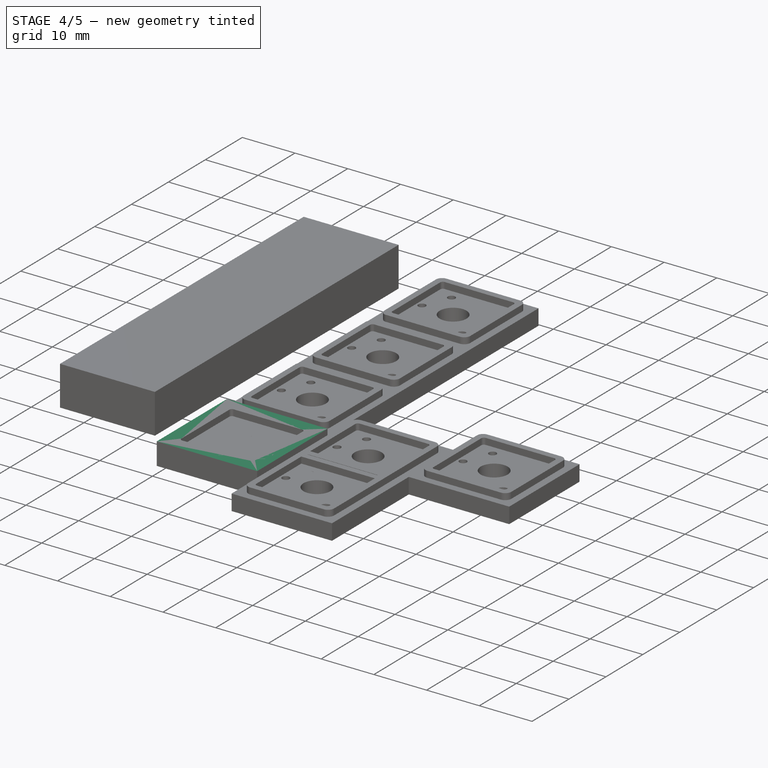
[diagram: stage 4 of 5 — iso view after this stage's code; geometry added in this stage tinted green]
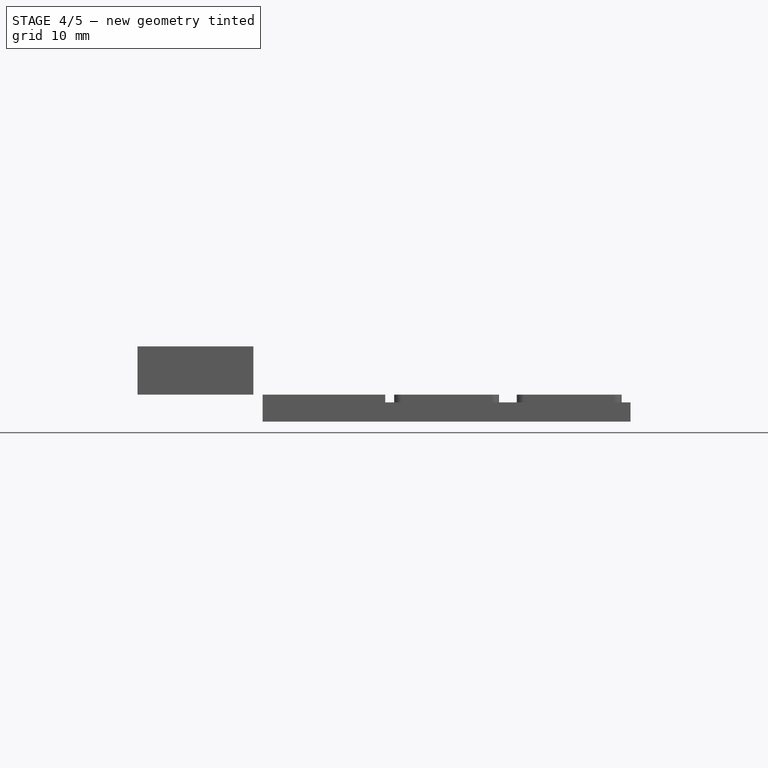
[diagram: stage 4 of 5 — front view after this stage's code; geometry added in this stage tinted green]
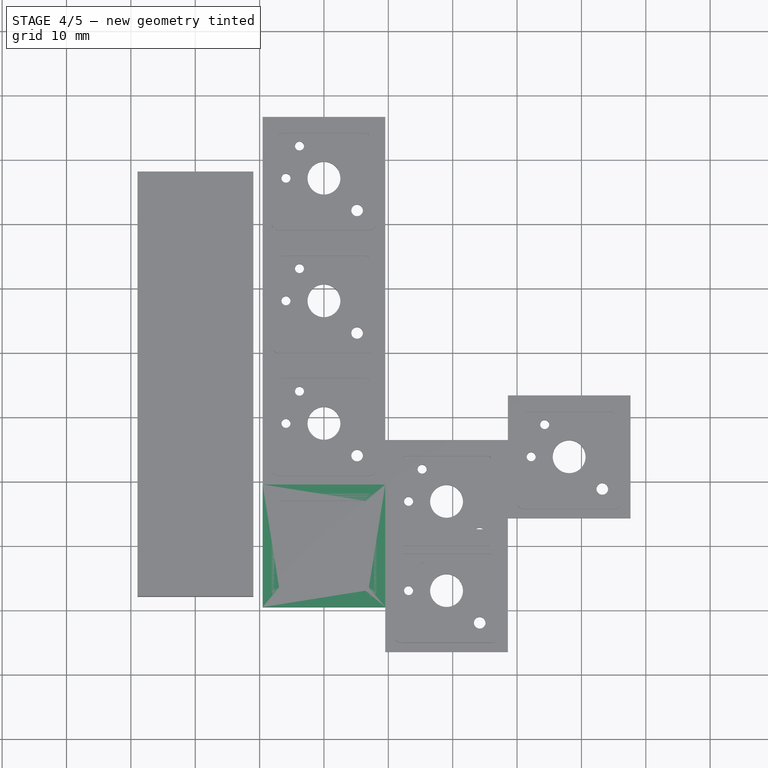
[diagram: stage 4 of 5 — top view after this stage's code; geometry added in this stage tinted green]
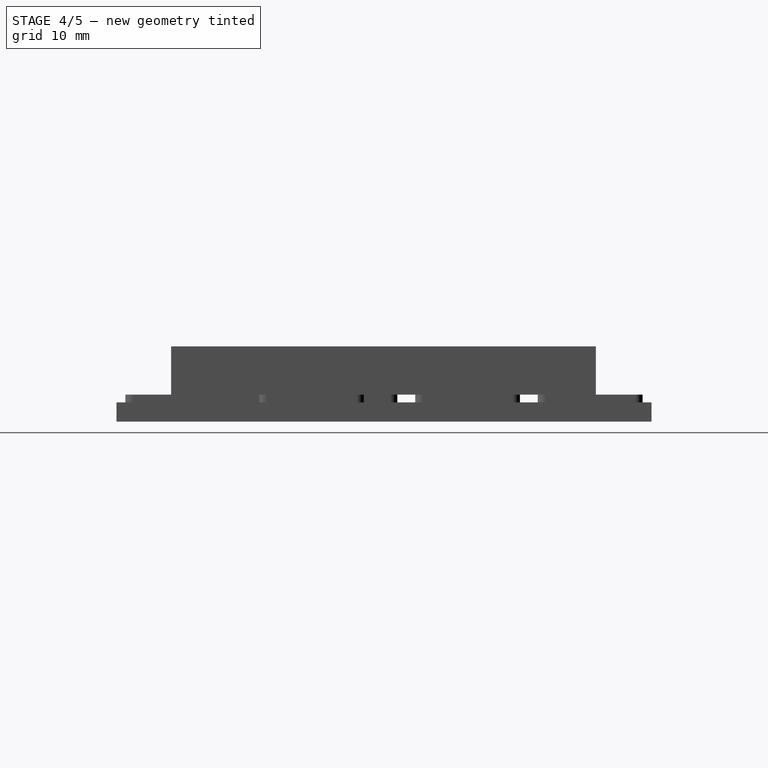
[diagram: stage 4 of 5 — right view after this stage's code; geometry added in this stage tinted green]
FEATURE [PartDesign::Body] Body
  Group = -> [Sketch001,Sketch,Pad,Sketch002,Pocket,Pocket001,Sketch003,Pocket002,LinearPattern]
  Origin = -> Origin
  Tip = -> LinearPattern
FEATURE [Sketcher::SketchObject] Sketch004
  FullyConstrained = true
  MapMode = 5
  sketch-geometry (8):
    g0: LineSegment StartX=-6.475 StartY=6.975 StartZ=0 EndX=6.475 EndY=6.975 EndZ=0
    g1: LineSegment StartX=6.975 StartY=6.475 StartZ=0 EndX=6.975 EndY=-6.475 EndZ=0
    g2: LineSegment StartX=6.475 StartY=-6.975 StartZ=0 EndX=-6.475 EndY=-6.975 EndZ=0
    g3: LineSegment StartX=-6.975 StartY=-6.475 StartZ=0 EndX=-6.975 EndY=6.475 EndZ=0
    g4: ArcOfCircle CenterX=-6.475 CenterY=6.475 CenterZ=0 NormalX=0 NormalY=0 NormalZ=1 AngleXU=0 Radius=0.5 StartAngle=1.5708 EndAngle=3.14159
    g5: ArcOfCircle CenterX=6.475 CenterY=6.475 CenterZ=0 NormalX=0 NormalY=0 NormalZ=1 AngleXU=0 Radius=0.5 StartAngle=1.121e-13 EndAngle=1.5708
    g6: ArcOfCircle CenterX=6.475 CenterY=-6.475 CenterZ=0 NormalX=0 NormalY=0 NormalZ=1 AngleXU=0 Radius=0.5 StartAngle=4.71239 EndAngle=6.28319
    g7: ArcOfCircle CenterX=-6.475 CenterY=-6.475 CenterZ=0 NormalX=0 NormalY=0 NormalZ=1 AngleXU=0 Radius=0.5 StartAngle=3.14159 EndAngle=4.71239
  constraints (18):
    c: Horizontal(g0)
    c: Horizontal(g2)
    c: Vertical(g1)
    c: Vertical(g3)
    c: Tangent(g3,g4) = 1.5708
    c: Tangent(g0,g4) = 1.5708
    c: Tangent(g0,g5) = 1.5708
    c: Tangent(g1,g5) = 1.5708
    c: Tangent(g1,g6) = 1.5708
    c: Tangent(g2,g6) = 1.5708
    c: Tangent(g3,g7) = 1.5708
    c: Tangent(g2,g7) = 1.5708
    c: Radius(g4) = 0.5
    c: DistanceX(g3,g1) = 13.95
    c: Equal(g4,g7)
    c: Equal(g2,g1)
    c: Symmetric(g5,g7,g-1)
    c: Symmetric(g6,g4,g-1)
FEATURE [Sketcher::SketchObject] Sketch005
  FullyConstrained = true
  MapMode = 5
  Support = -> [XY_Plane001]
  sketch-geometry (12):
    g0: LineSegment StartX=-6.975 StartY=8.145 StartZ=0 EndX=6.975 EndY=8.145 EndZ=0
    g1: LineSegment StartX=8.145 StartY=6.975 StartZ=0 EndX=8.145 EndY=-6.975 EndZ=0
    g2: LineSegment StartX=6.975 StartY=-8.145 StartZ=0 EndX=-6.975 EndY=-8.145 EndZ=0
    g3: LineSegment StartX=-8.145 StartY=-6.975 StartZ=0 EndX=-8.145 EndY=6.975 EndZ=0
    g4: ArcOfCircle CenterX=6.975 CenterY=6.975 CenterZ=0 NormalX=0 NormalY=0 NormalZ=1 AngleXU=0 Radius=1.17 StartAngle=0 EndAngle=1.5708
    g5: ArcOfCircle CenterX=-6.975 CenterY=6.975 CenterZ=0 NormalX=0 NormalY=0 NormalZ=1 AngleXU=0 Radius=1.17 StartAngle=1.5708 EndAngle=3.14159
    g6: ArcOfCircle CenterX=-6.975 CenterY=-6.975 CenterZ=0 NormalX=0 NormalY=0 NormalZ=1 AngleXU=0 Radius=1.17 StartAngle=3.14159 EndAngle=4.71239
    g7: ArcOfCircle CenterX=6.975 CenterY=-6.975 CenterZ=0 NormalX=0 NormalY=0 NormalZ=1 AngleXU=0 Radius=1.17 StartAngle=4.71239 EndAngle=6.28319
    g8: LineSegment StartX=-9.525 StartY=9.525 StartZ=0 EndX=9.525 EndY=9.525 EndZ=0
    g9: LineSegment StartX=9.525 StartY=9.525 StartZ=0 EndX=9.525 EndY=-9.525 EndZ=0
    g10: LineSegment StartX=9.525 StartY=-9.525 StartZ=0 EndX=-9.525 EndY=-9.525 EndZ=0
    g11: LineSegment StartX=-9.525 StartY=-9.525 StartZ=0 EndX=-9.525 EndY=9.525 EndZ=0
  constraints (29):
    c: Horizontal(g0)
    c: Horizontal(g2)
    c: Vertical(g1)
    c: Vertical(g3)
    c: Tangent(g0,g4) = 1.5708
    c: Tangent(g1,g4) = 1.5708
    c: Tangent(g0,g5) = 1.5708
    c: Tangent(g3,g5) = 1.5708
    c: Tangent(g3,g6) = 1.5708
    c: Tangent(g2,g6) = 1.5708
    c: Tangent(g2,g7) = 1.5708
    c: Tangent(g1,g7) = 1.5708
    c: Radius(g5) = 1.17
    c: DistanceX(g3,g1) = 16.29
    c: Equal(g2,g1)
    c: Symmetric(g4,g6,g-1)
    c: Symmetric(g7,g5,g-1)
    c: Equal(g5,g4)
    c: Coincident(g8,g9)
    c: Coincident(g9,g10)
    c: Coincident(g10,g11)
    c: Coincident(g11,g8)
    c: Horizontal(g8)
    c: Horizontal(g10)
    c: Vertical(g9)
    c: Vertical(g11)
    c: Symmetric(g8,g10,g-1)
    c: Equal(g9,g10)
    c: DistanceX(g10,g10) = 19.05
FEATURE [Sketcher::SketchObject] Sketch006
  FullyConstrained = true
  MapMode = 5
  Support = -> [XY_Plane001]
  sketch-geometry (4):
    g0: LineSegment StartX=-9.525 StartY=9.525 StartZ=0 EndX=9.525 EndY=9.525 EndZ=0
    g1: LineSegment StartX=9.525 StartY=9.525 StartZ=0 EndX=9.525 EndY=-9.525 EndZ=0
    g2: LineSegment StartX=9.525 StartY=-9.525 StartZ=0 EndX=-9.525 EndY=-9.525 EndZ=0
    g3: LineSegment StartX=-9.525 StartY=-9.525 StartZ=0 EndX=-9.525 EndY=9.525 EndZ=0
  constraints (11):
    c: Coincident(g0,g1)
    c: Coincident(g1,g2)
    c: Coincident(g2,g3)
    c: Coincident(g3,g0)
    c: Horizontal(g0)
    c: Horizontal(g2)
    c: Vertical(g1)
    c: Vertical(g3)
    c: Symmetric(g0,g2,g-1)
    c: Equal(g1,g0)
    c: DistanceX(g2,g2) = 19.05
FEATURE [PartDesign::Pad] Pad001
  Direction = (0,0,-1)
  Length = 4.2
  Length2 = 100
  Profile = -> Sketch006
  Type = 0
  UseCustomVector = true
FEATURE [PartDesign::Pocket] Pocket003
  BaseFeature = -> Pad001
  Length = 1.2
  Length2 = 100
  Profile = -> Sketch004
  Type = 0
FEATURE [PartDesign::Body] Body001
  Group = -> [Sketch007,Sketch006,Pad001,Sketch004,Pocket003,Pocket004,Sketch005,Pocket005,LinearPattern001]
  Origin = -> Origin001
  Placement = pos=(19.05,9.525,0) rot=(0,0,1;0rad)
  Tip = -> LinearPattern001
FEATURE [Sketcher::SketchObject] Sketch008
  FullyConstrained = true
  MapMode = 5
  sketch-geometry (8):
    g0: LineSegment StartX=-6.475 StartY=6.975 StartZ=0 EndX=6.475 EndY=6.975 EndZ=0
    g1: LineSegment StartX=6.975 StartY=6.475 StartZ=0 EndX=6.975 EndY=-6.475 EndZ=0
    g2: LineSegment StartX=6.475 StartY=-6.975 StartZ=0 EndX=-6.475 EndY=-6.975 EndZ=0
    g3: LineSegment StartX=-6.975 StartY=-6.475 StartZ=0 EndX=-6.975 EndY=6.475 EndZ=0
    g4: ArcOfCircle CenterX=-6.475 CenterY=6.475 CenterZ=0 NormalX=0 NormalY=0 NormalZ=1 AngleXU=0 Radius=0.5 StartAngle=1.5708 EndAngle=3.14159
    g5: ArcOfCircle CenterX=6.475 CenterY=6.475 CenterZ=0 NormalX=0 NormalY=0 NormalZ=1 AngleXU=0 Radius=0.5 StartAngle=1.121e-13 EndAngle=1.5708
    g6: ArcOfCircle CenterX=6.475 CenterY=-6.475 CenterZ=0 NormalX=0 NormalY=0 NormalZ=1 AngleXU=0 Radius=0.5 StartAngle=4.71239 EndAngle=6.28319
    g7: ArcOfCircle CenterX=-6.475 CenterY=-6.475 CenterZ=0 NormalX=0 NormalY=0 NormalZ=1 AngleXU=0 Radius=0.5 StartAngle=3.14159 EndAngle=4.71239
  constraints (18):
    c: Horizontal(g0)
    c: Horizontal(g2)
    c: Vertical(g1)
    c: Vertical(g3)
    c: Tangent(g3,g4) = 1.5708
    c: Tangent(g0,g4) = 1.5708
    c: Tangent(g0,g5) = 1.5708
    c: Tangent(g1,g5) = 1.5708
    c: Tangent(g1,g6) = 1.5708
    c: Tangent(g2,g6) = 1.5708
    c: Tangent(g3,g7) = 1.5708
    c: Tangent(g2,g7) = 1.5708
    c: Radius(g4) = 0.5
    c: DistanceX(g3,g1) = 13.95
    c: Equal(g4,g7)
    c: Equal(g2,g1)
    c: Symmetric(g5,g7,g-1)
    c: Symmetric(g6,g4,g-1)
FEATURE [Sketcher::SketchObject] Sketch009
  FullyConstrained = true
  MapMode = 5
  Support = -> [XY_Plane002]
  sketch-geometry (12):
    g0: LineSegment StartX=-6.975 StartY=8.145 StartZ=0 EndX=6.975 EndY=8.145 EndZ=0
    g1: LineSegment StartX=8.145 StartY=6.975 StartZ=0 EndX=8.145 EndY=-6.975 EndZ=0
    g2: LineSegment StartX=6.975 StartY=-8.145 StartZ=0 EndX=-6.975 EndY=-8.145 EndZ=0
    g3: LineSegment StartX=-8.145 StartY=-6.975 StartZ=0 EndX=-8.145 EndY=6.975 EndZ=0
    g4: ArcOfCircle CenterX=6.975 CenterY=6.975 CenterZ=0 NormalX=0 NormalY=0 NormalZ=1 AngleXU=0 Radius=1.17 StartAngle=0 EndAngle=1.5708
    g5: ArcOfCircle CenterX=-6.975 CenterY=6.975 CenterZ=0 NormalX=0 NormalY=0 NormalZ=1 AngleXU=0 Radius=1.17 StartAngle=1.5708 EndAngle=3.14159
    g6: ArcOfCircle CenterX=-6.975 CenterY=-6.975 CenterZ=0 NormalX=0 NormalY=0 NormalZ=1 AngleXU=0 Radius=1.17 StartAngle=3.14159 EndAngle=4.71239
    g7: ArcOfCircle CenterX=6.975 CenterY=-6.975 CenterZ=0 NormalX=0 NormalY=0 NormalZ=1 AngleXU=0 Radius=1.17 StartAngle=4.71239 EndAngle=6.28319
    g8: LineSegment StartX=-9.525 StartY=9.525 StartZ=0 EndX=9.525 EndY=9.525 EndZ=0
    g9: LineSegment StartX=9.525 StartY=9.525 StartZ=0 EndX=9.525 EndY=-9.525 EndZ=0
    g10: LineSegment StartX=9.525 StartY=-9.525 StartZ=0 EndX=-9.525 EndY=-9.525 EndZ=0
    g11: LineSegment StartX=-9.525 StartY=-9.525 StartZ=0 EndX=-9.525 EndY=9.525 EndZ=0
  constraints (29):
    c: Horizontal(g0)
    c: Horizontal(g2)
    c: Vertical(g1)
    c: Vertical(g3)
    c: Tangent(g0,g4) = 1.5708
    c: Tangent(g1,g4) = 1.5708
    c: Tangent(g0,g5) = 1.5708
    c: Tangent(g3,g5) = 1.5708
    c: Tangent(g3,g6) = 1.5708
    c: Tangent(g2,g6) = 1.5708
    c: Tangent(g2,g7) = 1.5708
    c: Tangent(g1,g7) = 1.5708
    c: Radius(g5) = 1.17
    c: DistanceX(g3,g1) = 16.29
    c: Equal(g2,g1)
    c: Symmetric(g4,g6,g-1)
    c: Symmetric(g7,g5,g-1)
    c: Equal(g5,g4)
    c: Coincident(g8,g9)
    c: Coincident(g9,g10)
    c: Coincident(g10,g11)
    c: Coincident(g11,g8)
    c: Horizontal(g8)
    c: Horizontal(g10)
    c: Vertical(g9)
    c: Vertical(g11)
    c: Symmetric(g8,g10,g-1)
    c: Equal(g9,g10)
    c: DistanceX(g10,g10) = 19.05
FEATURE [Sketcher::SketchObject] Sketch010
  FullyConstrained = true
  MapMode = 5
  Support = -> [XY_Plane002]
  sketch-geometry (7):
    g0: Circle CenterX=0 CenterY=0 CenterZ=0 NormalX=0 NormalY=0 NormalZ=1 AngleXU=0 Radius=2.55
    g1: GeomPoint X=-3.8 Y=5 Z=0
    g2: GeomPoint X=-5.9 Y=0 Z=0
    g3: GeomPoint X=5.15 Y=-5 Z=0
    g4: Circle CenterX=5.15 CenterY=-5 CenterZ=0 NormalX=0 NormalY=0 NormalZ=1 AngleXU=0 Radius=0.9
    g5: Circle CenterX=-3.8 CenterY=5 CenterZ=0 NormalX=0 NormalY=0 NormalZ=1 AngleXU=0 Radius=0.7
    g6: Circle CenterX=-5.9 CenterY=0 CenterZ=0 NormalX=0 NormalY=0 NormalZ=1 AngleXU=0 Radius=0.7
  constraints (14):
    c: Coincident(g0,g-1)
    c: DistanceY(g3,g0) = 5
    c: DistanceY(g2,g1) = 5
    c: Coincident(g4,g3)
    c: Coincident(g5,g1)
    c: Coincident(g6,g2)
    c: Radius(g5) = 0.7
    c: Radius(g6) = 0.7
    c: Radius(g0) = 2.55
    c: Radius(g4) = 0.9
    c: PointOnObject(g6,g-1)
    c: DistanceX(g6,g5) = 2.1
    c: DistanceX(g6,g0) = 5.9
    c: DistanceX(g0,g4) = 5.15
FEATURE [Sketcher::SketchObject] Sketch011
  FullyConstrained = true
  MapMode = 5
  Support = -> [XY_Plane002]
  sketch-geometry (4):
    g0: LineSegment StartX=-9.525 StartY=9.525 StartZ=0 EndX=9.525 EndY=9.525 EndZ=0
    g1: LineSegment StartX=9.525 StartY=9.525 StartZ=0 EndX=9.525 EndY=-9.525 EndZ=0
    g2: LineSegment StartX=9.525 StartY=-9.525 StartZ=0 EndX=-9.525 EndY=-9.525 EndZ=0
    g3: LineSegment StartX=-9.525 StartY=-9.525 StartZ=0 EndX=-9.525 EndY=9.525 EndZ=0
  constraints (11):
    c: Coincident(g0,g1)
    c: Coincident(g1,g2)
    c: Coincident(g2,g3)
    c: Coincident(g3,g0)
    c: Horizontal(g0)
    c: Horizontal(g2)
    c: Vertical(g1)
    c: Vertical(g3)
    c: Symmetric(g0,g2,g-1)
    c: Equal(g1,g0)
    c: DistanceX(g2,g2) = 19.05
FEATURE [PartDesign::Pad] Pad002
  Direction = (0,0,-1)
  Length = 4.2
  Length2 = 100
  Profile = -> Sketch011
  Type = 0
  UseCustomVector = true
FEATURE [PartDesign::Pocket] Pocket007
  BaseFeature = -> Pad002
  Length = 1.2
  Length2 = 100
  Profile = -> Sketch008
  Type = 0
FEATURE [PartDesign::Pocket] Pocket008
  BaseFeature = -> Pocket007
  Length = 5.2
  Length2 = 100
  Profile = -> Sketch010
  Type = 1
FEATURE [PartDesign::Pocket] Pocket006
  BaseFeature = -> Pocket008
  Length = 1.2
  Length2 = 100
  Profile = -> Sketch009
  Type = 0
FEATURE [PartDesign::LinearPattern] LinearPattern002
  BaseFeature = -> Pocket006
  Direction = -> Sketch011 [V_Axis]
  Length = 38.1
  Occurrences = 3
  Originals = -> [Pad002,Pocket007,Pocket008,Pocket006]
FEATURE [PartDesign::LinearPattern] LinearPattern003
  BaseFeature = -> Pocket009
  Direction = -> Sketch015 [V_Axis]
  Length = 38.1
  Occurrences = 3
  Originals = -> [Pad003,Pocket011,Pocket010,Pocket009]
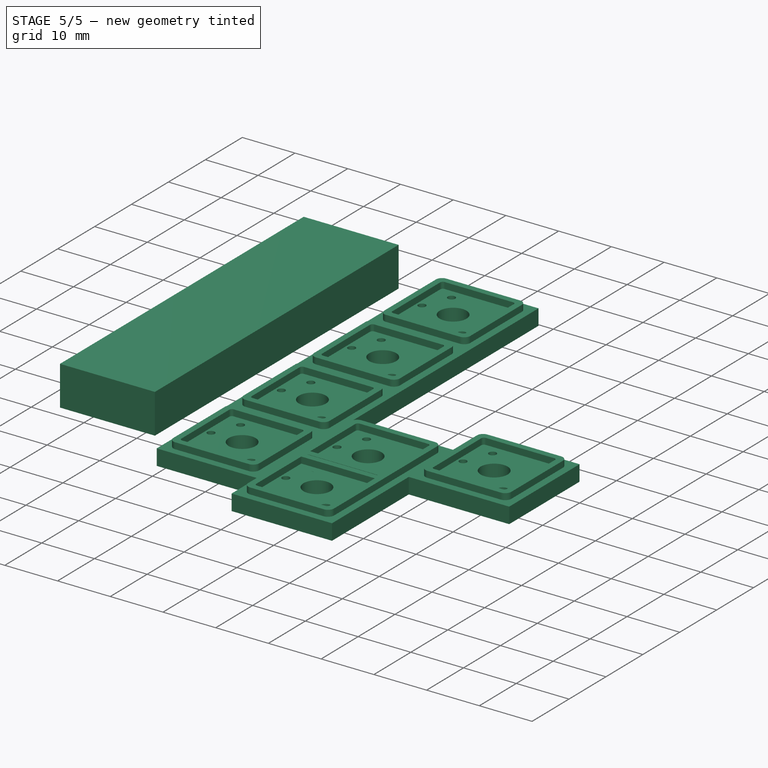
[diagram: stage 5 of 5 — iso view after this stage's code; geometry added in this stage tinted green]
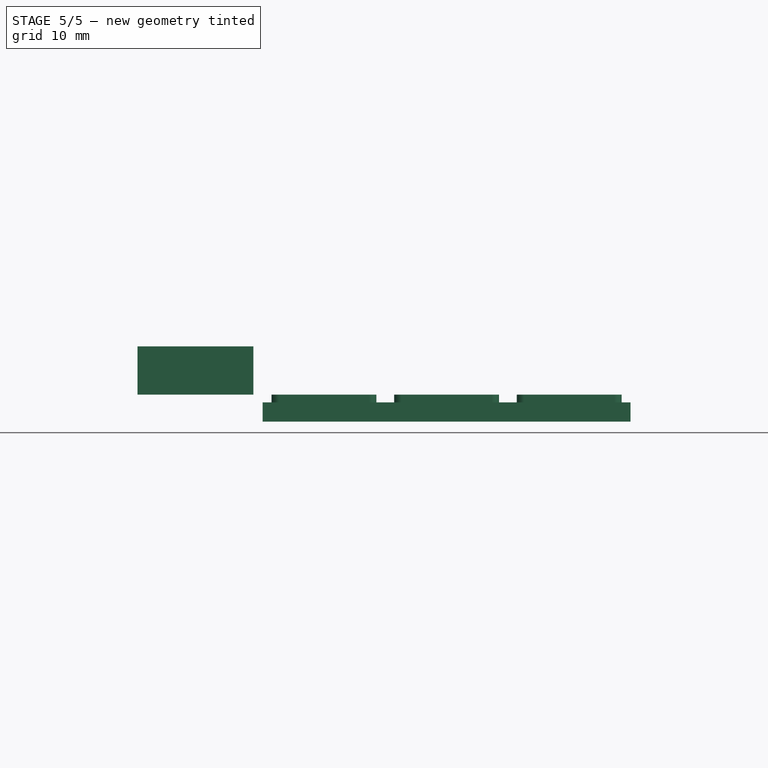
[diagram: stage 5 of 5 — front view after this stage's code; geometry added in this stage tinted green]
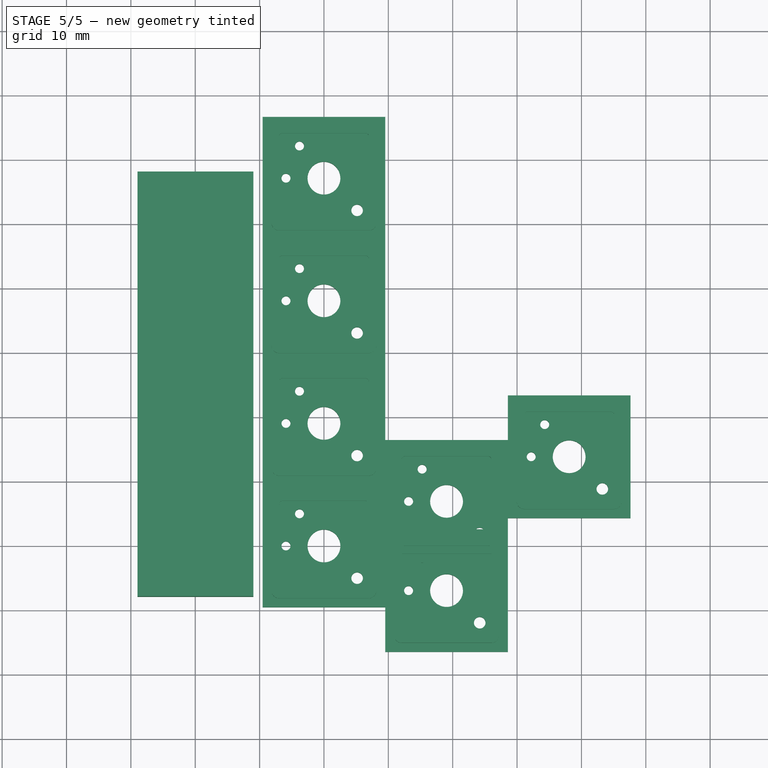
[diagram: stage 5 of 5 — top view after this stage's code; geometry added in this stage tinted green]
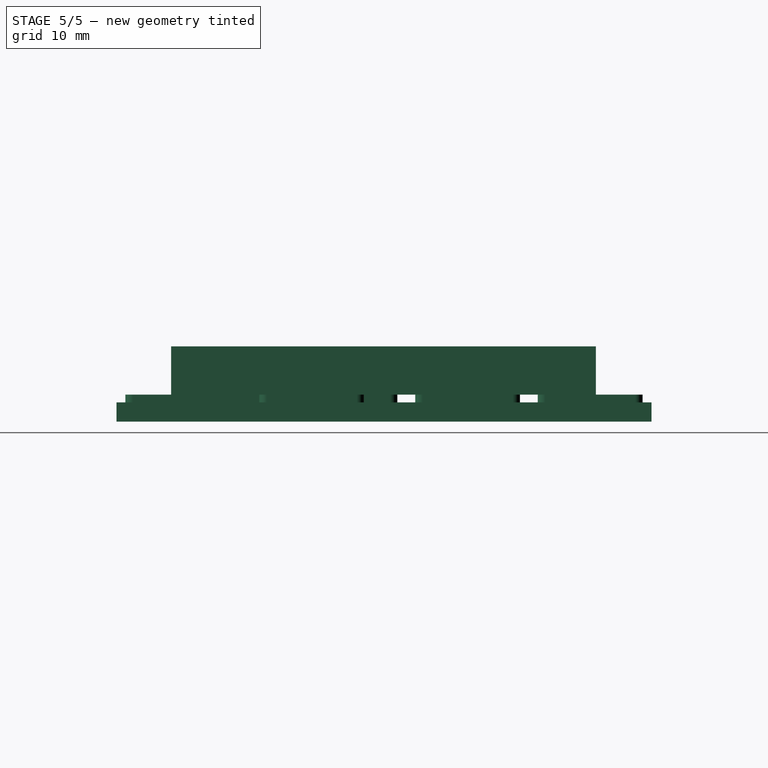
[diagram: stage 5 of 5 — right view after this stage's code; geometry added in this stage tinted green]
FEATURE [Sketcher::SketchObject] Sketch001
  FullyConstrained = true
  MapMode = 5
  Support = -> [XY_Plane]
  sketch-geometry (7):
    g0: Circle CenterX=0 CenterY=0 CenterZ=0 NormalX=0 NormalY=0 NormalZ=1 AngleXU=0 Radius=2.55
    g1: GeomPoint X=-3.8 Y=5 Z=0
    g2: GeomPoint X=-5.9 Y=0 Z=0
    g3: GeomPoint X=5.15 Y=-5 Z=0
    g4: Circle CenterX=5.15 CenterY=-5 CenterZ=0 NormalX=0 NormalY=0 NormalZ=1 AngleXU=0 Radius=0.9
    g5: Circle CenterX=-3.8 CenterY=5 CenterZ=0 NormalX=0 NormalY=0 NormalZ=1 AngleXU=0 Radius=0.7
    g6: Circle CenterX=-5.9 CenterY=0 CenterZ=0 NormalX=0 NormalY=0 NormalZ=1 AngleXU=0 Radius=0.7
  constraints (14):
    c: Coincident(g0,g-1)
    c: DistanceY(g3,g0) = 5
    c: DistanceY(g2,g1) = 5
    c: Coincident(g4,g3)
    c: Coincident(g5,g1)
    c: Coincident(g6,g2)
    c: Radius(g5) = 0.7
    c: Radius(g6) = 0.7
    c: Radius(g0) = 2.55
    c: Radius(g4) = 0.9
    c: PointOnObject(g6,g-1)
    c: DistanceX(g6,g5) = 2.1
    c: DistanceX(g6,g0) = 5.9
    c: DistanceX(g0,g4) = 5.15
FEATURE [Sketcher::SketchObject] Sketch
  FullyConstrained = true
  MapMode = 5
  Support = -> [XY_Plane]
  sketch-geometry (4):
    g0: LineSegment StartX=-9.525 StartY=9.525 StartZ=0 EndX=9.525 EndY=9.525 EndZ=0
    g1: LineSegment StartX=9.525 StartY=9.525 StartZ=0 EndX=9.525 EndY=-9.525 EndZ=0
    g2: LineSegment StartX=9.525 StartY=-9.525 StartZ=0 EndX=-9.525 EndY=-9.525 EndZ=0
    g3: LineSegment StartX=-9.525 StartY=-9.525 StartZ=0 EndX=-9.525 EndY=9.525 EndZ=0
  constraints (11):
    c: Coincident(g0,g1)
    c: Coincident(g1,g2)
    c: Coincident(g2,g3)
    c: Coincident(g3,g0)
    c: Horizontal(g0)
    c: Horizontal(g2)
    c: Vertical(g1)
    c: Vertical(g3)
    c: Symmetric(g0,g2,g-1)
    c: Equal(g1,g0)
    c: DistanceX(g2,g2) = 19.05
FEATURE [PartDesign::Pad] Pad
  Direction = (0,0,-1)
  Length = 4.2
  Length2 = 100
  Profile = -> Sketch
  Type = 0
  UseCustomVector = true
FEATURE [Sketcher::SketchObject] Sketch002
  FullyConstrained = true
  MapMode = 5
  sketch-geometry (8):
    g0: LineSegment StartX=-6.475 StartY=6.975 StartZ=0 EndX=6.475 EndY=6.975 EndZ=0
    g1: LineSegment StartX=6.975 StartY=6.475 StartZ=0 EndX=6.975 EndY=-6.475 EndZ=0
    g2: LineSegment StartX=6.475 StartY=-6.975 StartZ=0 EndX=-6.475 EndY=-6.975 EndZ=0
    g3: LineSegment StartX=-6.975 StartY=-6.475 StartZ=0 EndX=-6.975 EndY=6.475 EndZ=0
    g4: ArcOfCircle CenterX=-6.475 CenterY=6.475 CenterZ=0 NormalX=0 NormalY=0 NormalZ=1 AngleXU=0 Radius=0.5 StartAngle=1.5708 EndAngle=3.14159
    g5: ArcOfCircle CenterX=6.475 CenterY=6.475 CenterZ=0 NormalX=0 NormalY=0 NormalZ=1 AngleXU=0 Radius=0.5 StartAngle=1.121e-13 EndAngle=1.5708
    g6: ArcOfCircle CenterX=6.475 CenterY=-6.475 CenterZ=0 NormalX=0 NormalY=0 NormalZ=1 AngleXU=0 Radius=0.5 StartAngle=4.71239 EndAngle=6.28319
    g7: ArcOfCircle CenterX=-6.475 CenterY=-6.475 CenterZ=0 NormalX=0 NormalY=0 NormalZ=1 AngleXU=0 Radius=0.5 StartAngle=3.14159 EndAngle=4.71239
  constraints (18):
    c: Horizontal(g0)
    c: Horizontal(g2)
    c: Vertical(g1)
    c: Vertical(g3)
    c: Tangent(g3,g4) = 1.5708
    c: Tangent(g0,g4) = 1.5708
    c: Tangent(g0,g5) = 1.5708
    c: Tangent(g1,g5) = 1.5708
    c: Tangent(g1,g6) = 1.5708
    c: Tangent(g2,g6) = 1.5708
    c: Tangent(g3,g7) = 1.5708
    c: Tangent(g2,g7) = 1.5708
    c: Radius(g4) = 0.5
    c: DistanceX(g3,g1) = 13.95
    c: Equal(g4,g7)
    c: Equal(g2,g1)
    c: Symmetric(g5,g7,g-1)
    c: Symmetric(g6,g4,g-1)
FEATURE [PartDesign::Pocket] Pocket
  BaseFeature = -> Pad
  Length = 1.2
  Length2 = 100
  Profile = -> Sketch002
  Type = 0
FEATURE [PartDesign::Pocket] Pocket001
  BaseFeature = -> Pocket
  Length = 5.2
  Length2 = 100
  Profile = -> Sketch001
  Type = 1
FEATURE [Sketcher::SketchObject] Sketch003
  FullyConstrained = true
  MapMode = 5
  Support = -> [XY_Plane]
  sketch-geometry (12):
    g0: LineSegment StartX=-6.975 StartY=8.145 StartZ=0 EndX=6.975 EndY=8.145 EndZ=0
    g1: LineSegment StartX=8.145 StartY=6.975 StartZ=0 EndX=8.145 EndY=-6.975 EndZ=0
    g2: LineSegment StartX=6.975 StartY=-8.145 StartZ=0 EndX=-6.975 EndY=-8.145 EndZ=0
    g3: LineSegment StartX=-8.145 StartY=-6.975 StartZ=0 EndX=-8.145 EndY=6.975 EndZ=0
    g4: ArcOfCircle CenterX=6.975 CenterY=6.975 CenterZ=0 NormalX=0 NormalY=0 NormalZ=1 AngleXU=0 Radius=1.17 StartAngle=0 EndAngle=1.5708
    g5: ArcOfCircle CenterX=-6.975 CenterY=6.975 CenterZ=0 NormalX=0 NormalY=0 NormalZ=1 AngleXU=0 Radius=1.17 StartAngle=1.5708 EndAngle=3.14159
    g6: ArcOfCircle CenterX=-6.975 CenterY=-6.975 CenterZ=0 NormalX=0 NormalY=0 NormalZ=1 AngleXU=0 Radius=1.17 StartAngle=3.14159 EndAngle=4.71239
    g7: ArcOfCircle CenterX=6.975 CenterY=-6.975 CenterZ=0 NormalX=0 NormalY=0 NormalZ=1 AngleXU=0 Radius=1.17 StartAngle=4.71239 EndAngle=6.28319
    g8: LineSegment StartX=-9.525 StartY=9.525 StartZ=0 EndX=9.525 EndY=9.525 EndZ=0
    g9: LineSegment StartX=9.525 StartY=9.525 StartZ=0 EndX=9.525 EndY=-9.525 EndZ=0
    g10: LineSegment StartX=9.525 StartY=-9.525 StartZ=0 EndX=-9.525 EndY=-9.525 EndZ=0
    g11: LineSegment StartX=-9.525 StartY=-9.525 StartZ=0 EndX=-9.525 EndY=9.525 EndZ=0
  constraints (29):
    c: Horizontal(g0)
    c: Horizontal(g2)
    c: Vertical(g1)
    c: Vertical(g3)
    c: Tangent(g0,g4) = 1.5708
    c: Tangent(g1,g4) = 1.5708
    c: Tangent(g0,g5) = 1.5708
    c: Tangent(g3,g5) = 1.5708
    c: Tangent(g3,g6) = 1.5708
    c: Tangent(g2,g6) = 1.5708
    c: Tangent(g2,g7) = 1.5708
    c: Tangent(g1,g7) = 1.5708
    c: Radius(g5) = 1.17
    c: DistanceX(g3,g1) = 16.29
    c: Equal(g2,g1)
    c: Symmetric(g4,g6,g-1)
    c: Symmetric(g7,g5,g-1)
    c: Equal(g5,g4)
    c: Coincident(g8,g9)
    c: Coincident(g9,g10)
    c: Coincident(g10,g11)
    c: Coincident(g11,g8)
    c: Horizontal(g8)
    c: Horizontal(g10)
    c: Vertical(g9)
    c: Vertical(g11)
    c: Symmetric(g8,g10,g-1)
    c: Equal(g9,g10)
    c: DistanceX(g10,g10) = 19.05
FEATURE [PartDesign::Pocket] Pocket002
  BaseFeature = -> Pocket001
  Length = 1.2
  Length2 = 100
  Profile = -> Sketch003
  Type = 0
FEATURE [PartDesign::LinearPattern] LinearPattern
  BaseFeature = -> Pocket002
  Direction = -> Sketch [V_Axis]
  Length = 38.1
  Occurrences = 3
  Originals = -> [Pad,Pocket,Pocket001,Pocket002]
FEATURE [Sketcher::SketchObject] Sketch007
  FullyConstrained = true
  MapMode = 5
  Support = -> [XY_Plane001]
  sketch-geometry (7):
    g0: Circle CenterX=0 CenterY=0 CenterZ=0 NormalX=0 NormalY=0 NormalZ=1 AngleXU=0 Radius=2.55
    g1: GeomPoint X=-3.8 Y=5 Z=0
    g2: GeomPoint X=-5.9 Y=0 Z=0
    g3: GeomPoint X=5.15 Y=-5 Z=0
    g4: Circle CenterX=5.15 CenterY=-5 CenterZ=0 NormalX=0 NormalY=0 NormalZ=1 AngleXU=0 Radius=0.9
    g5: Circle CenterX=-3.8 CenterY=5 CenterZ=0 NormalX=0 NormalY=0 NormalZ=1 AngleXU=0 Radius=0.7
    g6: Circle CenterX=-5.9 CenterY=0 CenterZ=0 NormalX=0 NormalY=0 NormalZ=1 AngleXU=0 Radius=0.7
  constraints (14):
    c: Coincident(g0,g-1)
    c: DistanceY(g3,g0) = 5
    c: DistanceY(g2,g1) = 5
    c: Coincident(g4,g3)
    c: Coincident(g5,g1)
    c: Coincident(g6,g2)
    c: Radius(g5) = 0.7
    c: Radius(g6) = 0.7
    c: Radius(g0) = 2.55
    c: Radius(g4) = 0.9
    c: PointOnObject(g6,g-1)
    c: DistanceX(g6,g5) = 2.1
    c: DistanceX(g6,g0) = 5.9
    c: DistanceX(g0,g4) = 5.15
FEATURE [PartDesign::Pocket] Pocket004
  BaseFeature = -> Pocket003
  Length = 5.2
  Length2 = 100
  Profile = -> Sketch007
  Type = 1
FEATURE [PartDesign::Pocket] Pocket005
  BaseFeature = -> Pocket004
  Length = 1.2
  Length2 = 100
  Profile = -> Sketch005
  Type = 0
FEATURE [PartDesign::LinearPattern] LinearPattern001
  BaseFeature = -> Pocket005
  Direction = -> Sketch006 [V_Axis]
  Length = 38.1
  Occurrences = 3
  Originals = -> [Pad001,Pocket003,Pocket004,Pocket005]
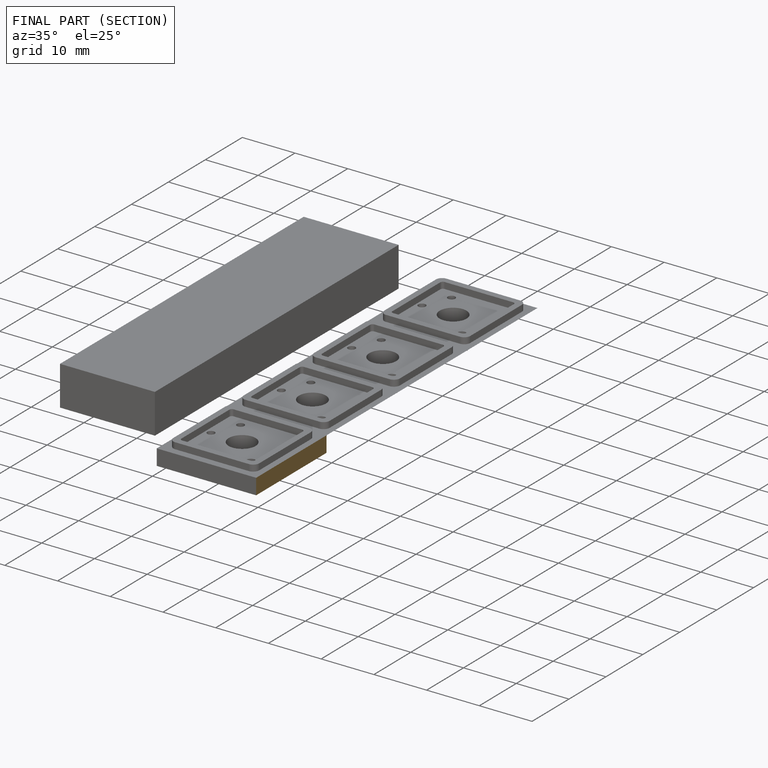
[diagram: finished part — half-section view (interior)]
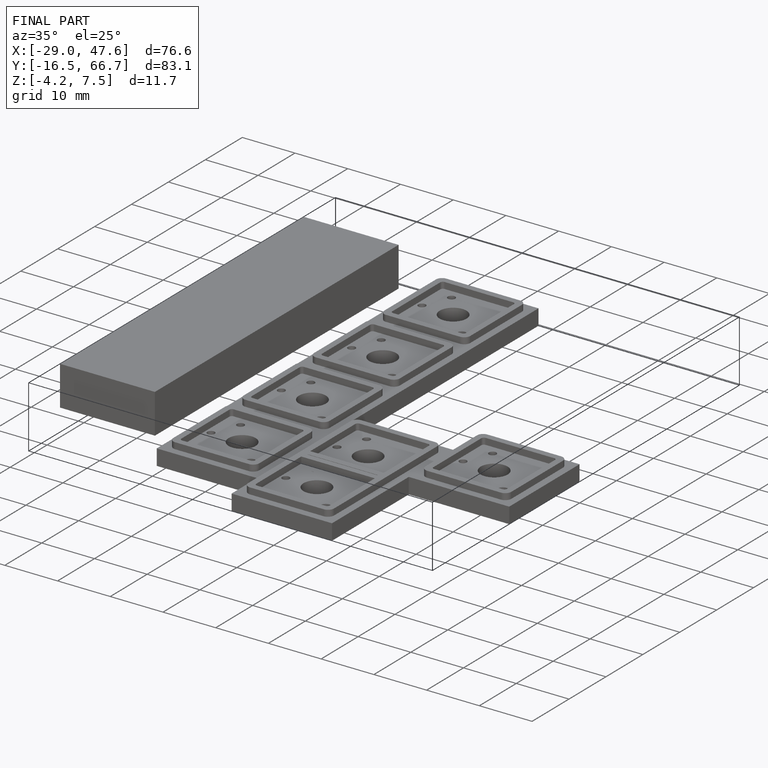
[diagram: finished part — iso view with bounding-box wireframe]
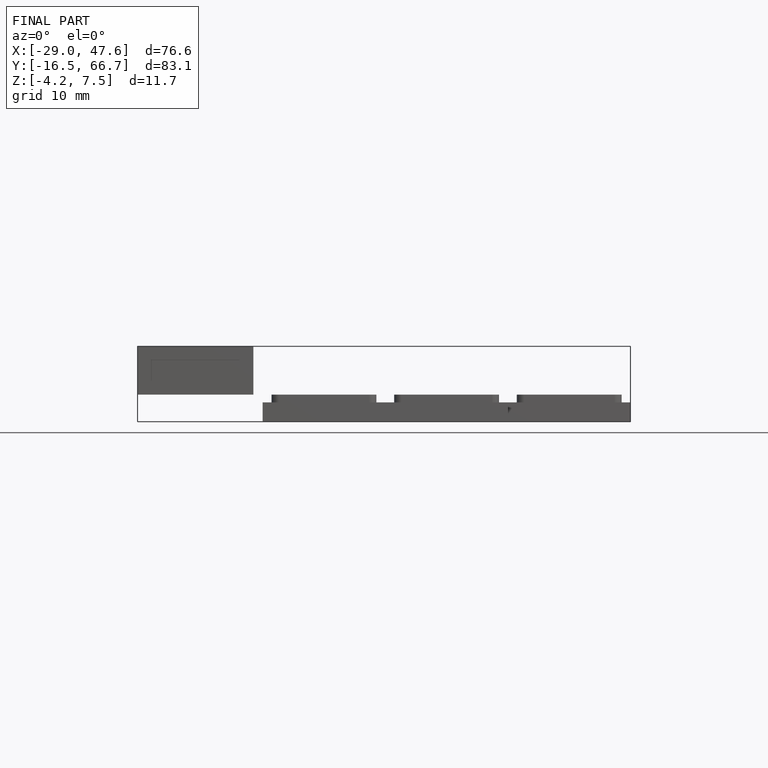
[diagram: finished part — front view with bounding-box wireframe]
